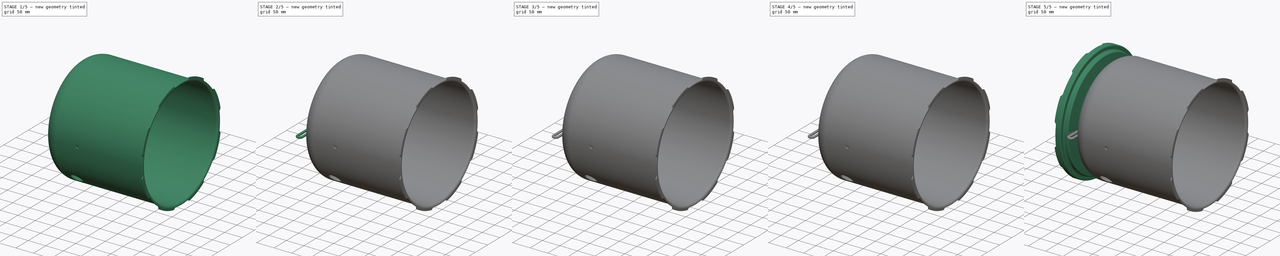
[diagram: build sequence overview — one tinted view per stage of 5, left to right]
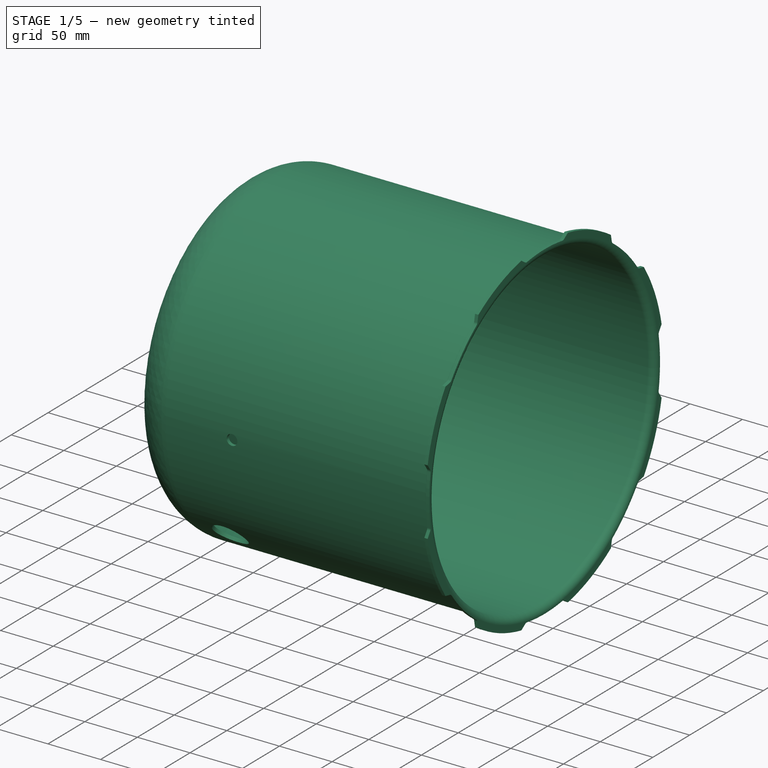
[diagram: stage 1 of 5 — iso view after this stage's code; geometry added in this stage tinted green]
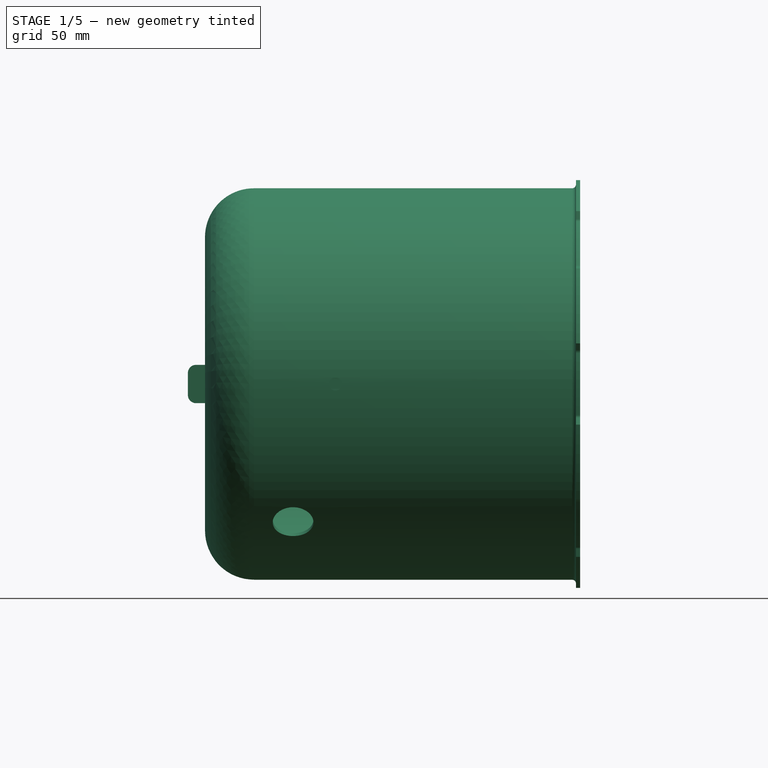
[diagram: stage 1 of 5 — front view after this stage's code; geometry added in this stage tinted green]
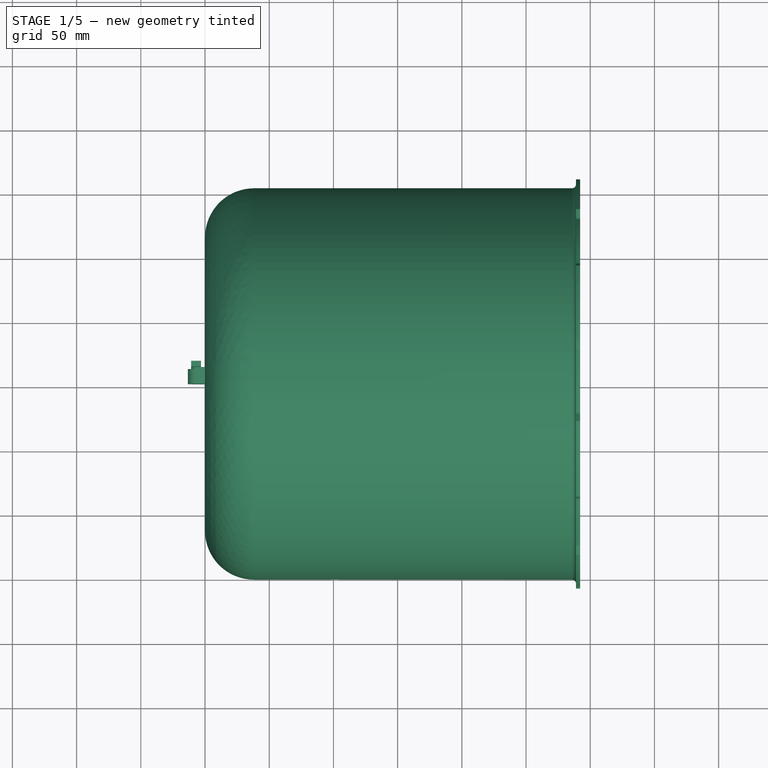
[diagram: stage 1 of 5 — top view after this stage's code; geometry added in this stage tinted green]
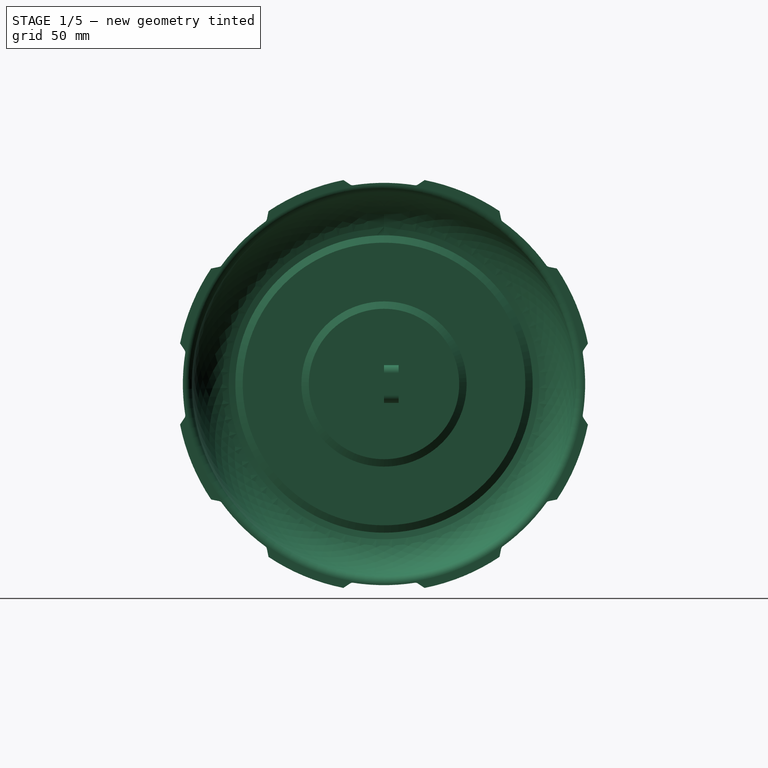
[diagram: stage 1 of 5 — right view after this stage's code; geometry added in this stage tinted green]
FCSTD DOCUMENT  (FreeCAD 0.20RUnknown)
Label: boiler-assy
License: All rights reserved
LicenseURL: http://en.wikipedia.org/wiki/All_rights_reserved
objects: Sketcher::SketchObject×46, PartDesign::Pad×23, PartDesign::Body×17, PartDesign::Pocket×11, PartDesign::Fillet×9, PartDesign::Revolution×3, PartDesign::PolarPattern×3, PartDesign::AdditiveHelix×3, PartDesign::Groove×3, App::Part×3, PartDesign::AdditivePipe×2, PartDesign::Plane×2, PartDesign::Line×1, PartDesign::AdditiveSphere×1, PartDesign::Chamfer×1
note: 181 computed .brp shape members not serialized (recipe doc carries the construction recipe); baked Part::Feature solids carry a one-line shape summary decoded from their .brp

FEATURE [Sketcher::SketchObject] Sketch003
  FullyConstrained = true
  MapMode = 5
  Placement = pos=(0,0,0) rot=(1,0,0;1.5708rad)
  Support = -> [XZ_Plane001]
  sketch-geometry (22):
    g0: ArcOfCircle CenterX=38.1 CenterY=114.3 CenterZ=0 NormalX=0 NormalY=0 NormalZ=1 AngleXU=0 Radius=38.1 StartAngle=1.5708 EndAngle=3.14159
    g1: LineSegment StartX=38.1 StartY=152.4 StartZ=0 EndX=285.75 EndY=152.4 EndZ=0
    g2: ArcOfCircle CenterX=285.75 CenterY=155.575 CenterZ=0 NormalX=0 NormalY=0 NormalZ=1 AngleXU=0 Radius=3.175 StartAngle=4.71239 EndAngle=6.28319
    g3: LineSegment StartX=288.925 StartY=155.575 StartZ=0 EndX=288.925 EndY=161.925 EndZ=0
    g4: LineSegment StartX=288.925 StartY=161.925 StartZ=0 EndX=292.1 EndY=161.925 EndZ=0
    g5: LineSegment StartX=292.1 StartY=161.925 StartZ=0 EndX=292.1 EndY=155.575 EndZ=0
    g6: ArcOfCircle CenterX=285.75 CenterY=155.575 CenterZ=0 NormalX=0 NormalY=0 NormalZ=1 AngleXU=0 Radius=6.35 StartAngle=4.71239 EndAngle=6.28319
    g7: LineSegment StartX=285.75 StartY=149.225 StartZ=0 EndX=38.1 EndY=149.225 EndZ=0
    g8: ArcOfCircle CenterX=38.1 CenterY=114.3 CenterZ=0 NormalX=0 NormalY=0 NormalZ=1 AngleXU=0 Radius=34.925 StartAngle=1.5708 EndAngle=3.09876
    g9: LineSegment StartX=3.20703 StartY=115.795 StartZ=0 EndX=5.89066 EndY=110.04 EndZ=0
    g10: LineSegment StartX=0 StartY=114.3 StartZ=0 EndX=2.68363 EndY=108.545 EndZ=0
    g11: LineSegment StartX=5.89066 StartY=110.04 StartZ=0 EndX=5.89066 EndY=64.3204 EndZ=0
    g12: LineSegment StartX=5.89066 StartY=64.3204 StartZ=0 EndX=8.57428 EndY=58.5654 EndZ=0
    g13: LineSegment StartX=8.57428 StartY=58.5654 StartZ=0 EndX=8.57428 EndY=0 EndZ=0
    g14: LineSegment StartX=2.68363 StartY=108.545 StartZ=0 EndX=2.68363 EndY=62.8249 EndZ=0
    g15: LineSegment StartX=2.68363 StartY=62.8249 StartZ=0 EndX=5.36725 EndY=57.0699 EndZ=0
    g16: LineSegment StartX=5.36725 StartY=57.0699 StartZ=0 EndX=5.36725 EndY=0 EndZ=0
    g17: LineSegment StartX=5.36725 StartY=0 StartZ=0 EndX=8.57428 EndY=0 EndZ=0
    g18: LineSegment StartX=2.68363 StartY=108.545 StartZ=0 EndX=5.89066 EndY=110.04 EndZ=0
    g19: LineSegment StartX=0 StartY=114.3 StartZ=0 EndX=3.20703 EndY=115.795 EndZ=0
    g20: LineSegment StartX=5.36725 StartY=57.0699 StartZ=0 EndX=8.57428 EndY=58.5654 EndZ=0
    g21: LineSegment StartX=2.68363 StartY=62.8249 StartZ=0 EndX=5.89066 EndY=64.3204 EndZ=0
  constraints (58):
    c: Horizontal(g1)
    c: Tangent(g1,g0) = 1.5708
    c: Radius(g0) = 38.1
    c: Vertical(g3)
    c: Tangent(g3,g2) = -1.5708
    c: Tangent(g2,g1) = -1.5708
    c: Coincident(g4,g3)
    c: Horizontal(g4)
    c: Coincident(g5,g4)
    c: Vertical(g5)
    c: DistanceY(g3,g3) = 6.35
    c: DistanceX(g4,g4) = 3.175
    c: Coincident(g6,g2)
    c: Tangent(g6,g5) = 1.5708
    c: Horizontal(g7)
    c: Tangent(g7,g6) = 1.5708
    c: Equal(g1,g7)
    c: Coincident(g8,g0)
    c: Coincident(g8,g7)
    c: Distance(g-1,g1) = 152.4
    c: DistanceY(g6,g5) = 6.35
    c: Coincident(g9,g8)
    c: Coincident(g10,g0)
    c: Coincident(g11,g9)
    c: Vertical(g11)
    c: Coincident(g12,g11)
    c: Coincident(g13,g12)
    c: Vertical(g13)
    c: PointOnObject(g13,g-1)
    c: Parallel(g10,g9)
    c: Parallel(g10,g12)
    c: Coincident(g14,g10)
    c: Vertical(g14)
    c: Coincident(g15,g14)
    c: Coincident(g16,g15)
    c: PointOnObject(g16,g-1)
    c: Vertical(g16)
    c: Coincident(g17,g16)
    c: Coincident(g17,g13)
    c: Parallel(g12,g15)
    c: Coincident(g18,g10)
    c: Coincident(g18,g9)
    c: Coincident(g19,g0)
    c: Coincident(g19,g8)
    c: Coincident(g20,g15)
    c: Coincident(g20,g12)
    c: Coincident(g21,g14)
    c: Coincident(g21,g11)
    c: Perpendicular(g19,g10)
    c: Perpendicular(g18,g10)
    c: Perpendicular(g21,g15)
    c: Perpendicular(g20,g15)
    c: Angle(g-2,g15) = 0.436332
    c: Tangent(g0,g-2) = 1.5708
    c: Distance(g10) = 6.35
    c: DistanceY(g14,g14) = 45.72
    c: Equal(g15,g10)
    c: DistanceX(g-1,g4) = 292.1
FEATURE [PartDesign::Revolution] Revolution
  Angle = 360
  Axis = (1,0,0)
  Base = (0,0,0)
  Placement = pos=(0,0,0) rot=(1,0,0;1.5708rad)
  Profile = -> Sketch003
  ReferenceAxis = -> Sketch003 [H_Axis]
FEATURE [PartDesign::Body] Body010  label="element"
  Group = -> [Sketch063,Sketch064,AdditivePipe001]
  Origin = -> Origin026
  Placement = pos=(17.78,152.4,0) rot=(0,0,1;0rad)
  Tip = -> AdditivePipe001
FEATURE [Sketcher::SketchObject] Sketch066
  FullyConstrained = true
  MapMode = 5
  Placement = pos=(0,0,0) rot=(1,0,0;1.5708rad)
  Support = -> [XZ_Plane027]
  sketch-geometry (12):
    g0: ArcOfCircle CenterX=-6.985 CenterY=8.5725 CenterZ=0 NormalX=0 NormalY=0 NormalZ=1 AngleXU=0 Radius=6.35 StartAngle=1.5708 EndAngle=3.14159
    g1: LineSegment StartX=-6.985 StartY=14.9225 StartZ=0 EndX=6.985 EndY=14.9225 EndZ=0
    g2: ArcOfCircle CenterX=6.985 CenterY=8.5725 CenterZ=0 NormalX=0 NormalY=0 NormalZ=1 AngleXU=0 Radius=6.35 StartAngle=3e-16 EndAngle=1.5708
    g3: LineSegment StartX=13.335 StartY=8.5725 StartZ=0 EndX=13.335 EndY=-8.5725 EndZ=0
    g4: ArcOfCircle CenterX=6.985 CenterY=-8.5725 CenterZ=0 NormalX=0 NormalY=0 NormalZ=1 AngleXU=0 Radius=6.35 StartAngle=4.71239 EndAngle=6.28319
    g5: LineSegment StartX=6.985 StartY=-14.9225 StartZ=0 EndX=-6.985 EndY=-14.9225 EndZ=0
    g6: ArcOfCircle CenterX=-6.985 CenterY=-8.5725 CenterZ=0 NormalX=0 NormalY=0 NormalZ=1 AngleXU=0 Radius=6.35 StartAngle=3.14159 EndAngle=4.71239
    g7: LineSegment StartX=-13.335 StartY=-8.5725 StartZ=0 EndX=-13.335 EndY=8.5725 EndZ=0
    g8: GeomPoint X=-13.335 Y=14.9225 Z=0
    g9: GeomPoint X=13.335 Y=-14.9225 Z=0
    g10: LineSegment StartX=-6.985 StartY=8.5725 StartZ=0 EndX=6.985 EndY=-8.5725 EndZ=0
    g11: LineSegment StartX=-6.985 StartY=-8.5725 StartZ=0 EndX=6.985 EndY=8.5725 EndZ=0
  constraints (28):
    c: Tangent(g0,g1) = 1.5708
    c: Tangent(g1,g2) = 1.5708
    c: Tangent(g2,g3) = 1.5708
    c: Tangent(g3,g4) = 1.5708
    c: Tangent(g4,g5) = 1.5708
    c: Tangent(g5,g6) = 1.5708
    c: Tangent(g6,g7) = 1.5708
    c: Tangent(g7,g0) = 1.5708
    c: Horizontal(g1)
    c: Horizontal(g5)
    c: Vertical(g3)
    c: Vertical(g7)
    c: Equal(g0,g2)
    c: Equal(g2,g4)
    c: Equal(g4,g6)
    c: PointOnObject(g8,g1)
    c: PointOnObject(g8,g7)
    c: PointOnObject(g9,g3)
    c: PointOnObject(g9,g5)
    c: Coincident(g10,g0)
    c: Coincident(g10,g4)
    c: Coincident(g11,g6)
    c: Coincident(g11,g2)
    c: PointOnObject(g-1,g10)
    c: PointOnObject(g-1,g11)
    c: Radius(g0) = 6.35
    c: Distance(g6,g3) = 26.67
    c: Distance(g4,g1) = 29.845
FEATURE [PartDesign::Pad] Pad014
  Direction = (0,-1,2e-16)
  Length = 11.43
  Length2 = 10
  Placement = pos=(0,0,0) rot=(1,0,0;1.5708rad)
  Profile = -> Sketch066
  ReferenceAxis = -> Sketch066 [N_Axis]
  Reversed = true
  Type = 0
FEATURE [PartDesign::Body] Body011  label="connector"
  Group = -> [Sketch066,Pad014,Sketch067,Pad015,Sketch068,Pad016,Sketch074,Pocket012]
  Origin = -> Origin027
  Placement = pos=(17.78,159.385,0) rot=(0,0,1;0rad)
  Tip = -> Pocket012
FEATURE [Sketcher::SketchObject] Sketch075
  AttachmentOffset = pos=(0,0,-11.43) rot=(0,0,1;0rad)
  FullyConstrained = true
  MapMode = 5
  Placement = pos=(0,11.43,2.5e-15) rot=(1,0,0;1.5708rad)
  Support = -> [XZ_Plane028]
  sketch-geometry (10):
    g0: ArcOfCircle CenterX=-6.858 CenterY=8.9535 CenterZ=0 NormalX=0 NormalY=0 NormalZ=1 AngleXU=0 Radius=3.937 StartAngle=1.5708 EndAngle=3.14159
    g1: LineSegment StartX=-6.858 StartY=12.8905 StartZ=0 EndX=0.889 EndY=12.8905 EndZ=0
    g2: LineSegment StartX=0.889 StartY=12.8905 StartZ=0 EndX=0.889 EndY=9.0805 EndZ=0
    g3: LineSegment StartX=0.889 StartY=9.0805 StartZ=0 EndX=-1.905 EndY=9.0805 EndZ=0
    g4: LineSegment StartX=-1.905 StartY=9.0805 StartZ=0 EndX=-1.905 EndY=4.1275 EndZ=0
    g5: LineSegment StartX=-3.175 StartY=2.8575 StartZ=0 EndX=-3.175 EndY=0.8255 EndZ=0
    g6: LineSegment StartX=-3.175 StartY=0.8255 StartZ=0 EndX=-10.795 EndY=0.8255 EndZ=0
    g7: LineSegment StartX=-10.795 StartY=0.8255 StartZ=0 EndX=-10.795 EndY=8.9535 EndZ=0
    g8: ArcOfCircle CenterX=-1.905 CenterY=2.8575 CenterZ=0 NormalX=0 NormalY=0 NormalZ=1 AngleXU=0 Radius=1.27 StartAngle=1.5708 EndAngle=3.14159
    g9: Circle CenterX=-6.858 CenterY=8.9535 CenterZ=0 NormalX=0 NormalY=0 NormalZ=1 AngleXU=0 Radius=2.2225
  constraints (28):
    c: Horizontal(g1)
    c: Coincident(g2,g1)
    c: Vertical(g2)
    c: Coincident(g3,g2)
    c: Horizontal(g3)
    c: Coincident(g4,g3)
    c: Vertical(g4)
    c: Vertical(g5)
    c: Coincident(g6,g5)
    c: Horizontal(g6)
    c: Coincident(g7,g6)
    c: Vertical(g7)
    c: Tangent(g7,g0) = 1.5708
    c: DistanceX(g0,g3) = 8.89
    c: Tangent(g1,g0) = 1.5708
    c: DistanceY(g5,g5) = 2.032
    c: Coincident(g8,g4)
    c: Tangent(g8,g5) = -1.5708
    c: Radius(g8) = 1.27
    c: Perpendicular(g8,g4)
    c: DistanceY(g5,g1) = 12.065
    c: Radius(g0) = 3.937
    c: DistanceY(g2,g2) = 3.81
    c: DistanceX(g4,g-1) = 1.905
    c: DistanceY(g-1,g5) = 0.8255
    c: Coincident(g9,g0)
    c: Diameter(g9) = 4.445
    c: DistanceX(g-1,g1) = 0.889
FEATURE [PartDesign::Pad] Pad022
  Direction = (0,-1,-2e-16)
  Length = 1.5875
  Length2 = 10
  Placement = pos=(0,0,0) rot=(1,0,0;1.5708rad)
  Profile = -> Sketch075
  ReferenceAxis = -> Sketch075 [N_Axis]
  Reversed = true
  Type = 0
FEATURE [Sketcher::SketchObject] Sketch076
  ExternalGeometry = -> [Pad022]
  FullyConstrained = true
  MapMode = 5
  Placement = pos=(3e-16,13.0175,3.4e-15) rot=(-1,0,0;1.5708rad)
  Support = -> [Pad022]
  sketch-geometry (4):
    g0: LineSegment StartX=-10.795 StartY=-0.8255 StartZ=0 EndX=-3.175 EndY=-0.8255 EndZ=0
    g1: LineSegment StartX=-3.175 StartY=-0.8255 StartZ=0 EndX=-3.175 EndY=-2.4765 EndZ=0
    g2: LineSegment StartX=-3.175 StartY=-2.4765 StartZ=0 EndX=-10.795 EndY=-2.4765 EndZ=0
    g3: LineSegment StartX=-10.795 StartY=-2.4765 StartZ=0 EndX=-10.795 EndY=-0.8255 EndZ=0
  constraints (11):
    c: Coincident(g0,g1)
    c: Coincident(g1,g2)
    c: Coincident(g2,g3)
    c: Coincident(g3,g0)
    c: Horizontal(g0)
    c: Horizontal(g2)
    c: Vertical(g1)
    c: Vertical(g3)
    c: Coincident(g0,g-4)
    c: PointOnObject(g1,g-11)
    c: DistanceY(g2,g0) = 1.651
FEATURE [PartDesign::Pad] Pad023
  BaseFeature = -> Pad022
  Direction = (0,1,2e-16)
  Length = 5.08
  Length2 = 10
  Placement = pos=(0,0,0) rot=(1,0,0;1.5708rad)
  Profile = -> Sketch076
  ReferenceAxis = -> Sketch076 [N_Axis]
  Type = 0
FEATURE [Sketcher::SketchObject] Sketch077
  ExternalGeometry = -> [Pad022]
  FullyConstrained = true
  MapMode = 5
  Placement = pos=(2e-16,11.43,3e-15) rot=(1,0,0;1.5708rad)
  Support = -> [Pad022]
  sketch-geometry (4):
    g0: LineSegment StartX=0.889 StartY=12.8905 StartZ=0 EndX=-0.762 EndY=12.8905 EndZ=0
    g1: LineSegment StartX=-0.762 StartY=12.8905 StartZ=0 EndX=-0.762 EndY=9.0805 EndZ=0
    g2: LineSegment StartX=-0.762 StartY=9.0805 StartZ=0 EndX=0.889 EndY=9.0805 EndZ=0
    g3: LineSegment StartX=0.889 StartY=9.0805 StartZ=0 EndX=0.889 EndY=12.8905 EndZ=0
  constraints (11):
    c: Coincident(g0,g1)
    c: Coincident(g1,g2)
    c: Coincident(g2,g3)
    c: Coincident(g3,g0)
    c: Horizontal(g0)
    c: Horizontal(g2)
    c: Vertical(g1)
    c: Vertical(g3)
    c: Coincident(g0,g-4)
    c: PointOnObject(g1,g-11)
    c: DistanceX(g2,g2) = 1.651
FEATURE [PartDesign::Pad] Pad024
  BaseFeature = -> Pad023
  Direction = (0,-1,-2e-16)
  Length = 3.175
  Length2 = 10
  Placement = pos=(0,0,0) rot=(1,0,0;1.5708rad)
  Profile = -> Sketch077
  ReferenceAxis = -> Sketch077 [N_Axis]
  Type = 0
FEATURE [PartDesign::Fillet] Fillet008
  Base = -> Pad024 [Edge16,Edge23,Edge12,Edge19]
  BaseFeature = -> Pad024
  Placement = pos=(0,0,0) rot=(1,0,0;1.5708rad)
  Radius = 1.27
  SupportTransform = false
  UseAllEdges = false
FEATURE [PartDesign::Body] Body015  label="contact-b"
  Group = -> [Sketch075,Pad022,Sketch076,Sketch077,Pad023,Pad024,Fillet008]
  Origin = -> Origin031
  Placement = pos=(17.78,159.385,0) rot=(0,1,0;3.14159rad)
  Tip = -> Fillet008
FEATURE [Sketcher::SketchObject] Sketch078
  FullyConstrained = true
  MapMode = 5
  Placement = pos=(0,0,0) rot=(1,0,0;1.5708rad)
  Support = -> [XZ_Plane032]
  sketch-geometry (3):
    g0: LineSegment StartX=6.35 StartY=0 StartZ=0 EndX=-6.35 EndY=0 EndZ=0
    g1: Circle CenterX=-6.35 CenterY=0 CenterZ=0 NormalX=0 NormalY=0 NormalZ=1 AngleXU=0 Radius=1.27
    g2: Circle CenterX=6.35 CenterY=0 CenterZ=0 NormalX=0 NormalY=0 NormalZ=1 AngleXU=0 Radius=1.27
  constraints (7):
    c: Horizontal(g0)
    c: Coincident(g1,g0)
    c: Coincident(g2,g0)
    c: Equal(g2,g1)
    c: Diameter(g2) = 2.54
    c: Symmetric(g0,g0,g-1)
    c: DistanceX(g0,g0) = 12.7
FEATURE [PartDesign::Pad] Pad025
  Direction = (0,-1,-2e-16)
  Length = 12.7
  Length2 = 10
  Placement = pos=(0,0,0) rot=(1,0,0;1.5708rad)
  Profile = -> Sketch078
  ReferenceAxis = -> Sketch078 [N_Axis]
  Reversed = true
  Type = 0
FEATURE [PartDesign::Body] Body016  label="contact-element-core"
  Group = -> [Sketch078,Pad025]
  Origin = -> Origin032
  Placement = pos=(17.78,165.608,0) rot=(0,0,1;0rad)
  Tip = -> Pad025
FEATURE [Sketcher::SketchObject] Sketch079
  FullyConstrained = true
  MapMode = 5
  Placement = pos=(0,0,0) rot=(1,0,0;1.5708rad)
  Support = -> [XZ_Plane032]
  sketch-geometry (3):
    g0: LineSegment StartX=6.35 StartY=0 StartZ=0 EndX=-6.35 EndY=0 EndZ=0
    g1: Circle CenterX=-6.35 CenterY=0 CenterZ=0 NormalX=0 NormalY=0 NormalZ=1 AngleXU=0 Radius=1.27
    g2: Circle CenterX=6.35 CenterY=0 CenterZ=0 NormalX=0 NormalY=0 NormalZ=1 AngleXU=0 Radius=1.27
  constraints (7):
    c: Horizontal(g0)
    c: Coincident(g1,g0)
    c: Coincident(g2,g0)
    c: Equal(g2,g1)
    c: Diameter(g2) = 2.54
    c: Symmetric(g0,g0,g-1)
    c: DistanceX(g0,g0) = 12.7
FEATURE [PartDesign::Pad] Pad026
  Direction = (0,-1,-2e-16)
  Length = 12.7
  Length2 = 10
  Placement = pos=(0,0,0) rot=(1,0,0;1.5708rad)
  Profile = -> Sketch079
  ReferenceAxis = -> Sketch079 [N_Axis]
  Reversed = true
  Type = 0
FEATURE [PartDesign::Body] Body017  label="contact-element-core2"
  Group = -> [Sketch079,Pad026]
  Origin = -> Origin033
  Placement = pos=(17.78,165.608,0) rot=(0,1,0;3.14159rad)
  Tip = -> Pad026
FEATURE [App::Part] Part002  label="boiler-element"
  Group = -> [Body009,Body010,Body011,Body012,Body014,Body015,Body016,Body017]
  Origin = -> Origin024
  Placement = pos=(0,0,0) rot=(1,0,0;-2.35619rad)
FEATURE [PartDesign::Pocket] Pocket
  BaseFeature = -> Revolution
  Direction = (0,1,2e-16)
  Length = 5
  Length2 = 5
  Placement = pos=(0,0,0) rot=(1,0,0;1.5708rad)
  Profile = -> Sketch052
  ReferenceAxis = -> Sketch052 [N_Axis]
  Reversed = true
  Type = 1
FEATURE [PartDesign::Pocket] Pocket013
  BaseFeature = -> Pocket
  Direction = (-1,2e-16,-3e-16)
  Length = 5
  Length2 = 5
  Midplane = true
  Placement = pos=(0,0,0) rot=(1,0,0;1.5708rad)
  Profile = -> Sketch004
  ReferenceAxis = -> Sketch004 [N_Axis]
  Type = 1
FEATURE [PartDesign::PolarPattern] PolarPattern
  Angle = 360
  Axis = -> X_Axis001
  BaseFeature = -> Pocket013
  Occurrences = 8
  Originals = -> [Pocket013]
  Placement = pos=(0,0,0) rot=(1,0,0;1.5708rad)
FEATURE [PartDesign::Plane] DatumPlane
  AttachmentOffset = pos=(0,0,0) rot=(1,0,0;0.785398rad)
  Length = 392.582
  MapMode = 5
  Placement = pos=(0,0,0) rot=(1,0,0;2.35619rad)
  ResizeMode = 0
  Support = -> [XZ_Plane001]
  Width = 524.675
FEATURE [Sketcher::SketchObject] Sketch080
  FullyConstrained = true
  MapMode = 5
  Placement = pos=(0,0,0) rot=(1,0,0;2.35619rad)
  Support = -> [DatumPlane]
  sketch-geometry (1):
    g0: Circle CenterX=68.58 CenterY=0 CenterZ=0 NormalX=0 NormalY=0 NormalZ=1 AngleXU=0 Radius=15.875
  constraints (3):
    c: PointOnObject(g0,g-1)
    c: Diameter(g0) = 31.75
    c: DistanceX(g-1,g0) = 68.58
FEATURE [PartDesign::Pocket] Pocket014
  BaseFeature = -> PolarPattern
  Direction = (0,0.707107,0.707107)
  Length = 5
  Length2 = 5
  Placement = pos=(0,0,0) rot=(1,0,0;1.5708rad)
  Profile = -> Sketch080
  ReferenceAxis = -> Sketch080 [N_Axis]
  Reversed = true
  Type = 1
FEATURE [PartDesign::Plane] DatumPlane001  label="water-level"
  AttachmentOffset = pos=(0,0,171.45) rot=(0,0,1;0rad)
  Length = 381.153
  MapMode = 5
  Placement = pos=(171.45,-3.81e-14,3.81e-14) rot=(0.57735,0.57735,0.57735;2.0944rad)
  ResizeMode = 0
  Support = -> [YZ_Plane001]
  Width = 381.153
FEATURE [PartDesign::Body] Body001  label="cylinder"
  Group = -> [Sketch003,Revolution,Sketch004,Sketch052,Pocket,Pocket013,PolarPattern,DatumPlane,Sketch080,Pocket014,DatumPlane001]
  Origin = -> Origin001
  Tip = -> Pocket014
FEATURE [App::Part] Part001  label="boiler"
  Group = -> [Body001,Body002]
  Origin = -> Origin016
  Placement = pos=(-50.8,0,0) rot=(0,0,1;0rad)
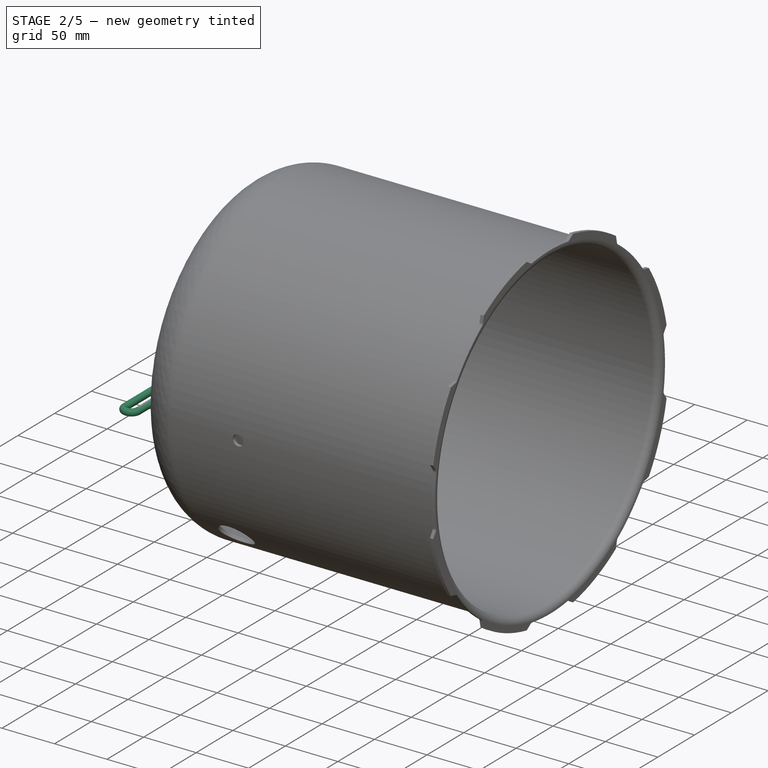
[diagram: stage 2 of 5 — iso view after this stage's code; geometry added in this stage tinted green]
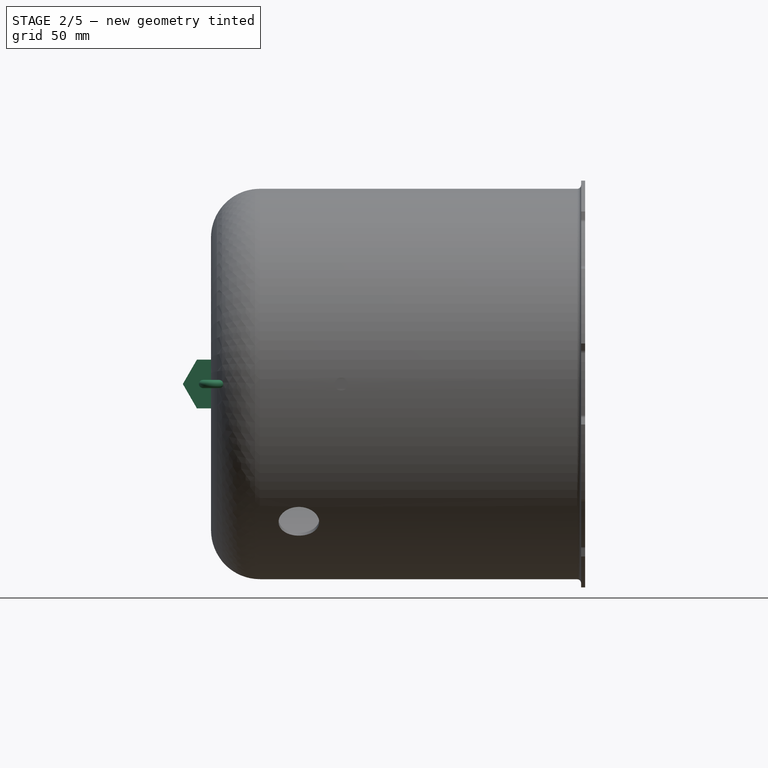
[diagram: stage 2 of 5 — front view after this stage's code; geometry added in this stage tinted green]
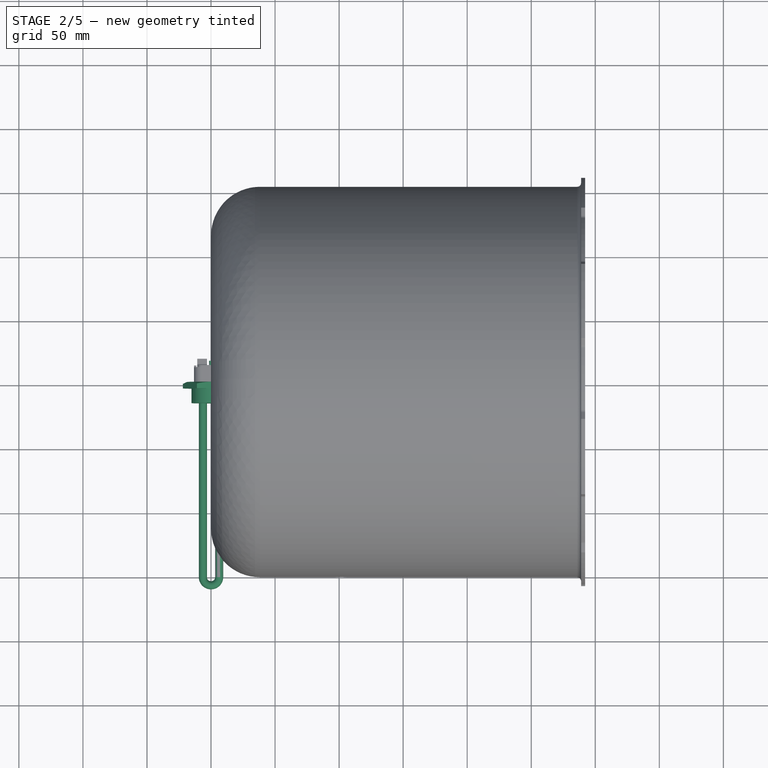
[diagram: stage 2 of 5 — top view after this stage's code; geometry added in this stage tinted green]
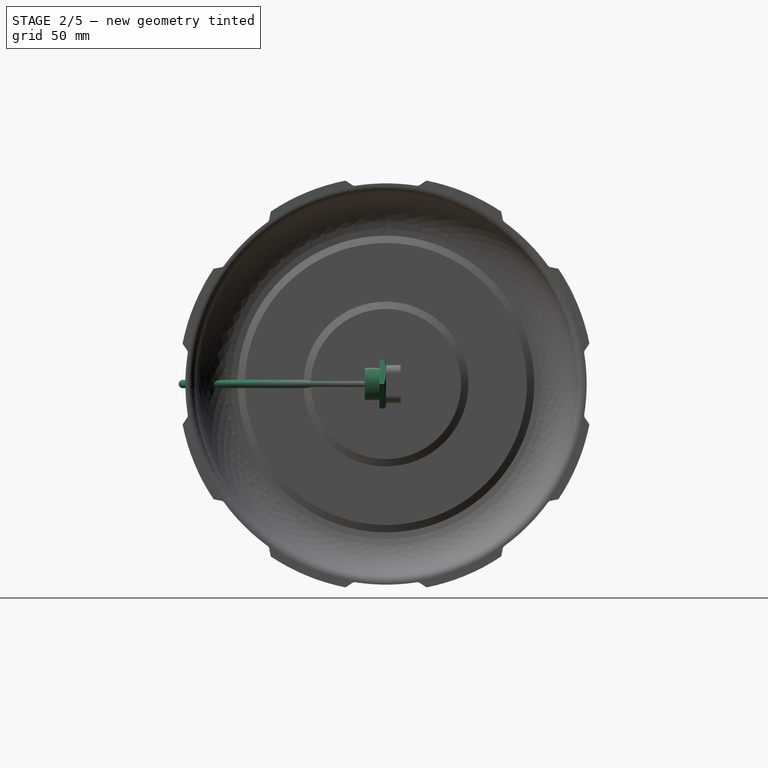
[diagram: stage 2 of 5 — right view after this stage's code; geometry added in this stage tinted green]
FEATURE [PartDesign::Body] Body  label="mount"
  Group = -> [Sketch,Sketch035,AdditivePipe,Sketch036,Pad,Sketch037,Pad004,Sketch038,Pad005,Sketch039,AdditiveHelix,DatumLine,AdditiveHelix001,Sketch040,Groove,Sketch041,Pocket003,Sketch042,Pocket004,Fillet006,Chamfer]
  Origin = -> Origin
  Tip = -> Chamfer
FEATURE [App::Part] Part  label="float-switch"
  Group = -> [Body,Body003,Body004,Body005,Body006,Body007,Body008]
  Origin = -> Origin017
  Placement = pos=(127,-102.235,0) rot=(-0.707107,0.707107,0;3.14159rad)
FEATURE [Sketcher::SketchObject] Sketch058
  FullyConstrained = true
  MapMode = 5
  Placement = pos=(0,0,0) rot=(1,0,0;1.5708rad)
  Support = -> [XZ_Plane025]
  sketch-geometry (7):
    g0: LineSegment StartX=21.997 StartY=0 StartZ=0 EndX=10.9985 EndY=19.05 EndZ=0
    g1: LineSegment StartX=10.9985 StartY=19.05 StartZ=0 EndX=-10.9985 EndY=19.05 EndZ=0
    g2: LineSegment StartX=-10.9985 StartY=19.05 StartZ=0 EndX=-21.997 EndY=0 EndZ=0
    g3: LineSegment StartX=-21.997 StartY=0 StartZ=0 EndX=-10.9985 EndY=-19.05 EndZ=0
    g4: LineSegment StartX=-10.9985 StartY=-19.05 StartZ=0 EndX=10.9985 EndY=-19.05 EndZ=0
    g5: LineSegment StartX=10.9985 StartY=-19.05 StartZ=0 EndX=21.997 EndY=0 EndZ=0
    g6: Circle CenterX=0 CenterY=0 CenterZ=0 NormalX=0 NormalY=0 NormalZ=1 AngleXU=0 Radius=21.997
  constraints (16):
    c: Coincident(g0,g1)
    c: Coincident(g1,g2)
    c: Coincident(g2,g3)
    c: Coincident(g3,g4)
    c: Coincident(g4,g5)
    c: Coincident(g5,g0)
    c: Equal(g0, g1-g5) x5
    c: PointOnObject(g0,g6)
    c: PointOnObject(g1,g6)
    c: PointOnObject(g2,g6)
    c: PointOnObject(g3,g6)
    c: PointOnObject(g4,g6)
    c: PointOnObject(g5,g6)
    c: Coincident(g6,g-1)
    c: PointOnObject(g5,g-1)
    c: Distance(g4,g1) = 38.1
FEATURE [PartDesign::Pad] Pad012
  Direction = (0,-1,2e-16)
  Length = 5.08
  Length2 = 10
  Placement = pos=(0,0,0) rot=(1,0,0;1.5708rad)
  Profile = -> Sketch058
  ReferenceAxis = -> Sketch058 [N_Axis]
  Type = 0
FEATURE [Sketcher::SketchObject] Sketch059
  FullyConstrained = true
  MapMode = 5
  Placement = pos=(0,-5.08,1.1e-15) rot=(1,0,0;1.5708rad)
  Support = -> [Pad012]
  sketch-geometry (1):
    g0: Circle CenterX=0 CenterY=0 CenterZ=0 NormalX=0 NormalY=0 NormalZ=1 AngleXU=0 Radius=15.24
  constraints (2):
    c: Coincident(g0,g-1)
    c: Diameter(g0) = 30.48
FEATURE [PartDesign::Pad] Pad013
  BaseFeature = -> Pad012
  Direction = (0,-1,2e-16)
  Length = 11.43
  Length2 = 10
  Placement = pos=(0,0,0) rot=(1,0,0;1.5708rad)
  Profile = -> Sketch059
  ReferenceAxis = -> Sketch059 [N_Axis]
  Type = 0
FEATURE [Sketcher::SketchObject] Sketch062
  FullyConstrained = true
  MapMode = 5
  Placement = pos=(0,0,0) rot=(0.57735,0.57735,0.57735;2.0944rad)
  Support = -> [YZ_Plane025]
  sketch-geometry (4):
    g0: LineSegment StartX=-3.87417 StartY=27.4975 StartZ=0 EndX=3.87417 EndY=10.0945 EndZ=0
    g1: GeomPoint X=0 Y=18.796 Z=0
    g2: LineSegment StartX=-3.87417 StartY=27.4975 StartZ=0 EndX=15.0715 EndY=25.5063 EndZ=0
    g3: LineSegment StartX=15.0715 StartY=25.5063 StartZ=0 EndX=3.87417 EndY=10.0945 EndZ=0
  constraints (10):
    c: Symmetric(g0,g0,g1)
    c: PointOnObject(g1,g-2)
    c: Coincident(g2,g0)
    c: Coincident(g3,g2)
    c: Coincident(g3,g0)
    c: Equal(g3,g2)
    c: Equal(g2,g0)
    c: Angle(g0,g-1) = 1.15192
    c: Distance(g0) = 19.05
    c: DistanceY(g-1,g1) = 18.796
FEATURE [Sketcher::SketchObject] Sketch063  label="element-profile"
  FullyConstrained = true
  MapMode = 5
  Placement = pos=(0,0,0) rot=(1,0,0;1.5708rad)
  Support = -> [XZ_Plane026]
  sketch-geometry (1):
    g0: Circle CenterX=6.35 CenterY=0 CenterZ=0 NormalX=0 NormalY=0 NormalZ=1 AngleXU=0 Radius=3.175
  constraints (3):
    c: PointOnObject(g0,g-1)
    c: DistanceX(g-1,g0) = 6.35
    c: Diameter(g0) = 6.35
FEATURE [Sketcher::SketchObject] Sketch064  label="element-path"
  FullyConstrained = true
  MapMode = 5
  Support = -> [XY_Plane026]
  sketch-geometry (3):
    g0: LineSegment StartX=6.35 StartY=0 StartZ=0 EndX=6.35 EndY=-152.4 EndZ=0
    g1: ArcOfCircle CenterX=4e-16 CenterY=-152.4 CenterZ=0 NormalX=0 NormalY=0 NormalZ=1 AngleXU=0 Radius=6.35 StartAngle=3.14159 EndAngle=6.28319
    g2: LineSegment StartX=-6.35 StartY=-152.4 StartZ=0 EndX=-6.35 EndY=0 EndZ=0
  constraints (9):
    c: PointOnObject(g0,g-1)
    c: Vertical(g0)
    c: DistanceX(g-1,g0) = 6.35
    c: DistanceY(g0,g0) = 152.4
    c: Tangent(g1,g0) = 1.5708
    c: PointOnObject(g2,g-1)
    c: Vertical(g2)
    c: Tangent(g2,g1) = 1.5708
    c: DistanceX(g2,g-1) = 6.35
FEATURE [PartDesign::Groove] Groove002
  Angle = 360
  Axis = (3e-16,1,-2e-16)
  Base = (0,0,0)
  BaseFeature = -> Pad013
  Placement = pos=(0,0,0) rot=(1,0,0;1.5708rad)
  Profile = -> Sketch062
  ReferenceAxis = -> Sketch062 [H_Axis]
  Reversed = true
FEATURE [PartDesign::Body] Body009  label="fitting"
  Group = -> [Sketch058,Pad012,Sketch059,Pad013,Sketch062,Groove002,Sketch065,Pocket010]
  Origin = -> Origin025
  Placement = pos=(17.78,159.385,0) rot=(0,0,1;0rad)
  Tip = -> Pocket010
FEATURE [PartDesign::AdditivePipe] AdditivePipe001
  AuxilleryCurvelinear = true
  AuxillerySpineTangent = false
  Binormal = (0,0,0)
  Mode = 0
  Placement = pos=(0,0,0) rot=(1,0,0;1.5708rad)
  Profile = -> Sketch063
  Spine = -> Sketch064
  SpineTangent = false
  Transformation = 0
  Transition = 0
FEATURE [Sketcher::SketchObject] Sketch067
  ExternalGeometry = -> [Pad014]
  FullyConstrained = true
  MapMode = 5
  Placement = pos=(0,11.43,-2.5e-15) rot=(-1,0,0;1.5708rad)
  Support = -> [Pad014]
  sketch-geometry (10):
    g0: LineSegment StartX=-11.43 StartY=-8.5725 StartZ=0 EndX=-11.43 EndY=8.5725 EndZ=0
    g1: LineSegment StartX=-11.43 StartY=8.5725 StartZ=0 EndX=-13.335 EndY=8.5725 EndZ=0
    g2: LineSegment StartX=-13.335 StartY=8.5725 StartZ=0 EndX=-13.335 EndY=-8.5725 EndZ=0
    g3: LineSegment StartX=-13.335 StartY=-8.5725 StartZ=0 EndX=-11.43 EndY=-8.5725 EndZ=0
    g4: GeomPoint X=-12.3825 Y=0 Z=0
    g5: LineSegment StartX=11.43 StartY=-8.5725 StartZ=0 EndX=11.43 EndY=8.5725 EndZ=0
    g6: LineSegment StartX=11.43 StartY=8.5725 StartZ=0 EndX=13.335 EndY=8.5725 EndZ=0
    g7: LineSegment StartX=13.335 StartY=8.5725 StartZ=0 EndX=13.335 EndY=-8.5725 EndZ=0
    g8: LineSegment StartX=13.335 StartY=-8.5725 StartZ=0 EndX=11.43 EndY=-8.5725 EndZ=0
    g9: GeomPoint X=12.3825 Y=0 Z=0
  constraints (25):
    c: Coincident(g0,g1)
    c: Coincident(g1,g2)
    c: Coincident(g2,g3)
    c: Coincident(g3,g0)
    c: Horizontal(g1)
    c: Horizontal(g3)
    c: Vertical(g0)
    c: Vertical(g2)
    c: Symmetric(g1,g0,g4)
    c: PointOnObject(g4,g-1)
    c: Coincident(g5,g6)
    c: Coincident(g6,g7)
    c: Coincident(g7,g8)
    c: Coincident(g8,g5)
    c: Horizontal(g6)
    c: Horizontal(g8)
    c: Vertical(g5)
    c: Vertical(g7)
    c: Symmetric(g6,g5,g9)
    c: PointOnObject(g9,g-1)
    c: PointOnObject(g6,g-5)
    c: Equal(g5,g0)
    c: Equal(g1,g6)
    c: DistanceX(g1,g1) = 1.905
    c: Coincident(g1,g-9)
FEATURE [PartDesign::Pad] Pad015
  BaseFeature = -> Pad014
  Direction = (0,1,-2e-16)
  Length = 1.27
  Length2 = 10
  Placement = pos=(0,0,0) rot=(1,0,0;1.5708rad)
  Profile = -> Sketch067
  ReferenceAxis = -> Sketch067 [N_Axis]
  Type = 0
FEATURE [Sketcher::SketchObject] Sketch068
  FullyConstrained = true
  MapMode = 5
  Placement = pos=(0,11.43,-2.5e-15) rot=(-1,0,0;1.5708rad)
  Support = -> [Pad015]
  sketch-geometry (12):
    g0: ArcOfCircle CenterX=-0.3175 CenterY=6.6675 CenterZ=0 NormalX=0 NormalY=0 NormalZ=1 AngleXU=0 Radius=1.27 StartAngle=1.5708 EndAngle=3.14159
    g1: LineSegment StartX=-0.3175 StartY=7.9375 StartZ=0 EndX=0.3175 EndY=7.9375 EndZ=0
    g2: ArcOfCircle CenterX=0.3175 CenterY=6.6675 CenterZ=0 NormalX=0 NormalY=0 NormalZ=1 AngleXU=0 Radius=1.27 StartAngle=1e-16 EndAngle=1.5708
    g3: LineSegment StartX=1.5875 StartY=6.6675 StartZ=0 EndX=1.5875 EndY=-6.6675 EndZ=0
    g4: ArcOfCircle CenterX=0.3175 CenterY=-6.6675 CenterZ=0 NormalX=0 NormalY=0 NormalZ=1 AngleXU=0 Radius=1.27 StartAngle=4.71239 EndAngle=6.28319
    g5: LineSegment StartX=0.3175 StartY=-7.9375 StartZ=0 EndX=-0.3175 EndY=-7.9375 EndZ=0
    g6: ArcOfCircle CenterX=-0.3175 CenterY=-6.6675 CenterZ=0 NormalX=0 NormalY=0 NormalZ=1 AngleXU=0 Radius=1.27 StartAngle=3.14159 EndAngle=4.71239
    g7: LineSegment StartX=-1.5875 StartY=-6.6675 StartZ=0 EndX=-1.5875 EndY=6.6675 EndZ=0
    g8: GeomPoint X=-1.5875 Y=7.9375 Z=0
    g9: GeomPoint X=1.5875 Y=-7.9375 Z=0
    g10: LineSegment StartX=-0.3175 StartY=6.6675 StartZ=0 EndX=0.3175 EndY=-6.6675 EndZ=0
    g11: LineSegment StartX=0.3175 StartY=6.6675 StartZ=0 EndX=-0.3175 EndY=-6.6675 EndZ=0
  constraints (28):
    c: Tangent(g0,g1) = 1.5708
    c: Tangent(g1,g2) = 1.5708
    c: Tangent(g2,g3) = 1.5708
    c: Tangent(g3,g4) = 1.5708
    c: Tangent(g4,g5) = 1.5708
    c: Tangent(g5,g6) = 1.5708
    c: Tangent(g6,g7) = 1.5708
    c: Tangent(g7,g0) = 1.5708
    c: Horizontal(g1)
    c: Horizontal(g5)
    c: Vertical(g3)
    c: Vertical(g7)
    c: Equal(g0,g2)
    c: Equal(g2,g4)
    c: Equal(g4,g6)
    c: PointOnObject(g8,g1)
    c: PointOnObject(g8,g7)
    c: PointOnObject(g9,g3)
    c: PointOnObject(g9,g5)
    c: Coincident(g10,g0)
    c: Coincident(g10,g4)
    c: Coincident(g11,g2)
    c: Coincident(g11,g6)
    c: PointOnObject(g-1,g10)
    c: PointOnObject(g-1,g11)
    c: Distance(g6,g3) = 3.175
    c: Radius(g2) = 1.27
    c: Distance(g0,g5) = 15.875
FEATURE [PartDesign::Pad] Pad016
  BaseFeature = -> Pad015
  Direction = (0,1,-2e-16)
  Length = 5.08
  Length2 = 10
  Placement = pos=(0,0,0) rot=(1,0,0;1.5708rad)
  Profile = -> Sketch068
  ReferenceAxis = -> Sketch068 [N_Axis]
  Type = 0
FEATURE [Sketcher::SketchObject] Sketch069
  AttachmentOffset = pos=(0,0,-11.43) rot=(0,0,1;0rad)
  FullyConstrained = true
  MapMode = 5
  Placement = pos=(0,11.43,2.5e-15) rot=(1,0,0;1.5708rad)
  Support = -> [XZ_Plane028]
  sketch-geometry (10):
    g0: ArcOfCircle CenterX=-6.858 CenterY=8.9535 CenterZ=0 NormalX=0 NormalY=0 NormalZ=1 AngleXU=0 Radius=3.937 StartAngle=1.5708 EndAngle=3.14159
    g1: LineSegment StartX=-6.858 StartY=12.8905 StartZ=0 EndX=0.889 EndY=12.8905 EndZ=0
    g2: LineSegment StartX=0.889 StartY=12.8905 StartZ=0 EndX=0.889 EndY=9.0805 EndZ=0
    g3: LineSegment StartX=0.889 StartY=9.0805 StartZ=0 EndX=-1.905 EndY=9.0805 EndZ=0
    g4: LineSegment StartX=-1.905 StartY=9.0805 StartZ=0 EndX=-1.905 EndY=4.1275 EndZ=0
    g5: LineSegment StartX=-3.175 StartY=2.8575 StartZ=0 EndX=-3.175 EndY=0.8255 EndZ=0
    g6: LineSegment StartX=-3.175 StartY=0.8255 StartZ=0 EndX=-10.795 EndY=0.8255 EndZ=0
    g7: LineSegment StartX=-10.795 StartY=0.8255 StartZ=0 EndX=-10.795 EndY=8.9535 EndZ=0
    g8: ArcOfCircle CenterX=-1.905 CenterY=2.8575 CenterZ=0 NormalX=0 NormalY=0 NormalZ=1 AngleXU=0 Radius=1.27 StartAngle=1.5708 EndAngle=3.14159
    g9: Circle CenterX=-6.858 CenterY=8.9535 CenterZ=0 NormalX=0 NormalY=0 NormalZ=1 AngleXU=0 Radius=2.2225
  constraints (28):
    c: Horizontal(g1)
    c: Coincident(g2,g1)
    c: Vertical(g2)
    c: Coincident(g3,g2)
    c: Horizontal(g3)
    c: Coincident(g4,g3)
    c: Vertical(g4)
    c: Vertical(g5)
    c: Coincident(g6,g5)
    c: Horizontal(g6)
    c: Coincident(g7,g6)
    c: Vertical(g7)
    c: Tangent(g7,g0) = 1.5708
    c: DistanceX(g0,g3) = 8.89
    c: Tangent(g1,g0) = 1.5708
    c: DistanceY(g5,g5) = 2.032
    c: Coincident(g8,g4)
    c: Tangent(g8,g5) = -1.5708
    c: Radius(g8) = 1.27
    c: Perpendicular(g8,g4)
    c: DistanceY(g5,g1) = 12.065
    c: Radius(g0) = 3.937
    c: DistanceY(g2,g2) = 3.81
    c: DistanceX(g4,g-1) = 1.905
    c: DistanceY(g-1,g5) = 0.8255
    c: Coincident(g9,g0)
    c: Diameter(g9) = 4.445
    c: DistanceX(g-1,g1) = 0.889
FEATURE [PartDesign::Pad] Pad017
  Direction = (0,-1,-2e-16)
  Length = 1.5875
  Length2 = 10
  Placement = pos=(0,0,0) rot=(1,0,0;1.5708rad)
  Profile = -> Sketch069
  ReferenceAxis = -> Sketch069 [N_Axis]
  Reversed = true
  Type = 0
FEATURE [Sketcher::SketchObject] Sketch071
  FullyConstrained = true
  MapMode = 5
  Placement = pos=(0,0,0) rot=(1,0,0;1.5708rad)
  Support = -> [XZ_Plane030]
  sketch-geometry (2):
    g0: Circle CenterX=0 CenterY=0 CenterZ=0 NormalX=0 NormalY=0 NormalZ=1 AngleXU=0 Radius=15.875
    g1: Circle CenterX=0 CenterY=0 CenterZ=0 NormalX=0 NormalY=0 NormalZ=1 AngleXU=0 Radius=18.7325
  constraints (4):
    c: Coincident(g0,g-1)
    c: Coincident(g1,g0)
    c: Diameter(g1) = 37.465
    c: Diameter(g0) = 31.75
FEATURE [PartDesign::Pad] Pad019
  Direction = (0,-1,2e-16)
  Length = 3.81
  Length2 = 10
  Placement = pos=(0,0,0) rot=(1,0,0;1.5708rad)
  Profile = -> Sketch071
  ReferenceAxis = -> Sketch071 [N_Axis]
  Type = 0
FEATURE [PartDesign::Body] Body014  label="element-seal"
  Group = -> [Sketch071,Pad019]
  Origin = -> Origin030
  Placement = pos=(17.78,154.305,0) rot=(0,0,1;0rad)
  Tip = -> Pad019
FEATURE [Sketcher::SketchObject] Sketch072
  ExternalGeometry = -> [Pad017]
  FullyConstrained = true
  MapMode = 5
  Placement = pos=(3e-16,13.0175,3.4e-15) rot=(-1,0,0;1.5708rad)
  Support = -> [Pad017]
  sketch-geometry (4):
    g0: LineSegment StartX=-10.795 StartY=-0.8255 StartZ=0 EndX=-3.175 EndY=-0.8255 EndZ=0
    g1: LineSegment StartX=-3.175 StartY=-0.8255 StartZ=0 EndX=-3.175 EndY=-2.4765 EndZ=0
    g2: LineSegment StartX=-3.175 StartY=-2.4765 StartZ=0 EndX=-10.795 EndY=-2.4765 EndZ=0
    g3: LineSegment StartX=-10.795 StartY=-2.4765 StartZ=0 EndX=-10.795 EndY=-0.8255 EndZ=0
  constraints (11):
    c: Coincident(g0,g1)
    c: Coincident(g1,g2)
    c: Coincident(g2,g3)
    c: Coincident(g3,g0)
    c: Horizontal(g0)
    c: Horizontal(g2)
    c: Vertical(g1)
    c: Vertical(g3)
    c: Coincident(g0,g-4)
    c: PointOnObject(g1,g-11)
    c: DistanceY(g2,g0) = 1.651
FEATURE [Sketcher::SketchObject] Sketch073
  ExternalGeometry = -> [Pad017]
  FullyConstrained = true
  MapMode = 5
  Placement = pos=(2e-16,11.43,3e-15) rot=(1,0,0;1.5708rad)
  Support = -> [Pad017]
  sketch-geometry (4):
    g0: LineSegment StartX=0.889 StartY=12.8905 StartZ=0 EndX=-0.762 EndY=12.8905 EndZ=0
    g1: LineSegment StartX=-0.762 StartY=12.8905 StartZ=0 EndX=-0.762 EndY=9.0805 EndZ=0
    g2: LineSegment StartX=-0.762 StartY=9.0805 StartZ=0 EndX=0.889 EndY=9.0805 EndZ=0
    g3: LineSegment StartX=0.889 StartY=9.0805 StartZ=0 EndX=0.889 EndY=12.8905 EndZ=0
  constraints (11):
    c: Coincident(g0,g1)
    c: Coincident(g1,g2)
    c: Coincident(g2,g3)
    c: Coincident(g3,g0)
    c: Horizontal(g0)
    c: Horizontal(g2)
    c: Vertical(g1)
    c: Vertical(g3)
    c: Coincident(g0,g-4)
    c: PointOnObject(g1,g-11)
    c: DistanceX(g2,g2) = 1.651
FEATURE [PartDesign::Pad] Pad020
  BaseFeature = -> Pad017
  Direction = (0,1,2e-16)
  Length = 5.08
  Length2 = 10
  Placement = pos=(0,0,0) rot=(1,0,0;1.5708rad)
  Profile = -> Sketch072
  ReferenceAxis = -> Sketch072 [N_Axis]
  Type = 0
FEATURE [PartDesign::Pad] Pad021
  BaseFeature = -> Pad020
  Direction = (0,-1,-2e-16)
  Length = 3.175
  Length2 = 10
  Placement = pos=(0,0,0) rot=(1,0,0;1.5708rad)
  Profile = -> Sketch073
  ReferenceAxis = -> Sketch073 [N_Axis]
  Type = 0
FEATURE [PartDesign::Fillet] Fillet007
  Base = -> Pad021 [Edge16,Edge23,Edge12,Edge19]
  BaseFeature = -> Pad021
  Placement = pos=(0,0,0) rot=(1,0,0;1.5708rad)
  Radius = 1.27
  SupportTransform = false
  UseAllEdges = false
FEATURE [PartDesign::Body] Body012  label="contact-a"
  Group = -> [Sketch069,Pad017,Sketch072,Sketch073,Pad020,Pad021,Fillet007]
  Origin = -> Origin028
  Placement = pos=(17.78,159.385,0) rot=(0,0,1;0rad)
  Tip = -> Fillet007
FEATURE [Sketcher::SketchObject] Sketch074
  FullyConstrained = true
  MapMode = 5
  Placement = pos=(0,11.43,-2.5e-15) rot=(-1,0,0;1.5708rad)
  Support = -> [Pad016]
  sketch-geometry (15):
    g0: Circle CenterX=-6.731 CenterY=-8.89 CenterZ=0 NormalX=0 NormalY=0 NormalZ=1 AngleXU=0 Radius=3.175
    g1: Circle CenterX=6.731 CenterY=8.89 CenterZ=0 NormalX=0 NormalY=0 NormalZ=1 AngleXU=0 Radius=3.175
    g2: LineSegment StartX=-1.27 StartY=-8.6995 StartZ=0 EndX=-1.27 EndY=-13.1445 EndZ=0
    g3: LineSegment StartX=-1.27 StartY=-13.1445 StartZ=0 EndX=1.27 EndY=-13.1445 EndZ=0
    g4: LineSegment StartX=1.27 StartY=-13.1445 StartZ=0 EndX=1.27 EndY=-8.6995 EndZ=0
    g5: LineSegment StartX=1.27 StartY=-8.6995 StartZ=0 EndX=-1.27 EndY=-8.6995 EndZ=0
    g6: GeomPoint X=0 Y=-10.922 Z=0
    g7: LineSegment StartX=-1.27 StartY=8.6995 StartZ=0 EndX=-1.27 EndY=13.1445 EndZ=0
    g8: LineSegment StartX=-1.27 StartY=13.1445 StartZ=0 EndX=1.27 EndY=13.1445 EndZ=0
    g9: LineSegment StartX=1.27 StartY=13.1445 StartZ=0 EndX=1.27 EndY=8.6995 EndZ=0
    g10: LineSegment StartX=1.27 StartY=8.6995 StartZ=0 EndX=-1.27 EndY=8.6995 EndZ=0
    g11: GeomPoint X=0 Y=10.922 Z=0
    g12: LineSegment StartX=0 StartY=10.922 StartZ=0 EndX=0 EndY=-10.922 EndZ=0
    g13: Circle CenterX=-6.35 CenterY=0 CenterZ=0 NormalX=0 NormalY=0 NormalZ=1 AngleXU=0 Radius=2.2225
    g14: Circle CenterX=6.35 CenterY=0 CenterZ=0 NormalX=0 NormalY=0 NormalZ=1 AngleXU=0 Radius=2.2225
  constraints (39):
    c: Coincident(g2,g3)
    c: Coincident(g3,g4)
    c: Coincident(g4,g5)
    c: Coincident(g5,g2)
    c: Horizontal(g3)
    c: Horizontal(g5)
    c: Vertical(g2)
    c: Vertical(g4)
    c: Symmetric(g3,g2,g6)
    c: PointOnObject(g6,g-2)
    c: Coincident(g7,g8)
    c: Coincident(g8,g9)
    c: Coincident(g9,g10)
    c: Coincident(g10,g7)
    c: Horizontal(g8)
    c: Horizontal(g10)
    c: Vertical(g7)
    c: Vertical(g9)
    c: Symmetric(g8,g7,g11)
    c: Symmetric(g12,g12,g-1)
    c: Coincident(g12,g11)
    c: Coincident(g12,g6)
    c: Equal(g9,g4)
    c: Equal(g10,g3)
    c: DistanceX(g10,g10) = 2.54
    c: DistanceY(g9,g9) = 4.445
    c: DistanceX(g0,g-1) = 6.731
    c: DistanceY(g0,g-1) = 8.89
    c: DistanceY(g12,g12) = 21.844
    c: DistanceX(g-1,g1) = 6.731
    c: DistanceY(g-1,g1) = 8.89
    c: Diameter(g0) = 6.35
    c: Equal(g0,g1)
    c: PointOnObject(g13,g-1)
    c: PointOnObject(g14,g-1)
    c: Equal(g14,g13)
    c: Diameter(g13) = 4.445
    c: DistanceX(g-1,g14) = 6.35
    c: DistanceX(g13,g-1) = 6.35
FEATURE [PartDesign::Pocket] Pocket012
  BaseFeature = -> Pad016
  Direction = (0,-1,4e-16)
  Length = 5.08
  Length2 = 5
  Placement = pos=(0,0,0) rot=(1,0,0;1.5708rad)
  Profile = -> Sketch074
  ReferenceAxis = -> Sketch074 [N_Axis]
  Type = 0
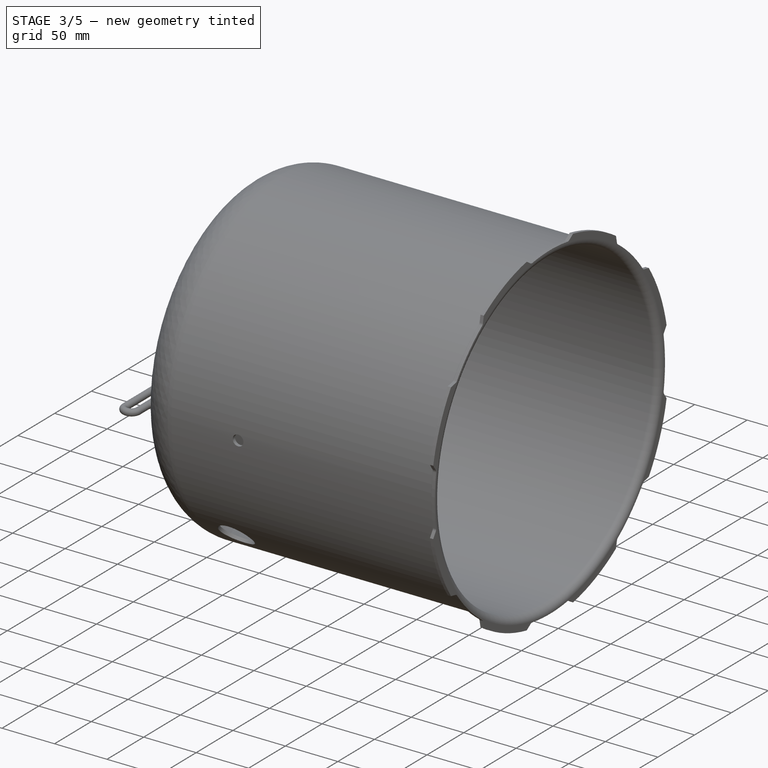
[diagram: stage 3 of 5 — iso view after this stage's code; geometry added in this stage tinted green]
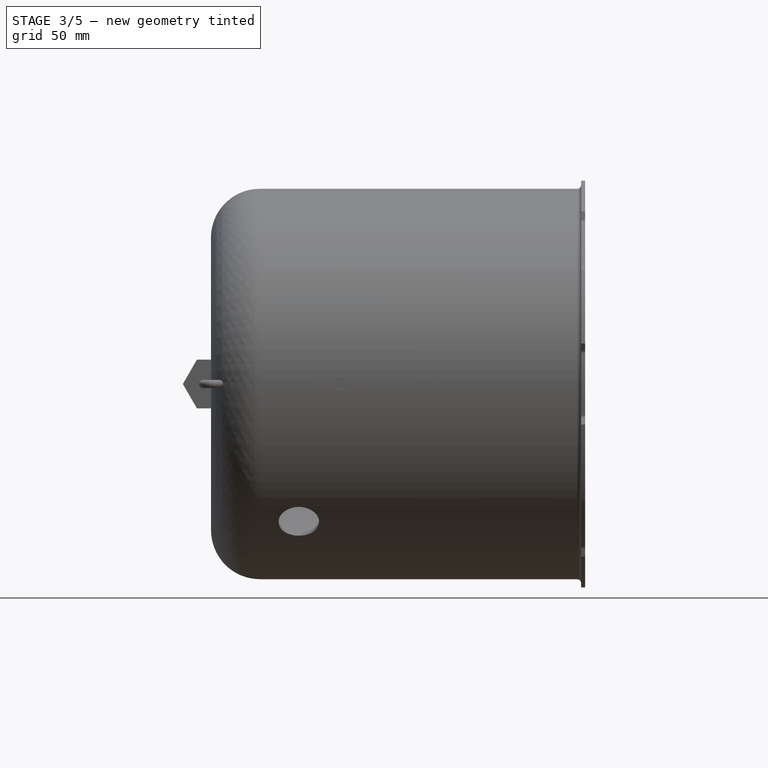
[diagram: stage 3 of 5 — front view after this stage's code; geometry added in this stage tinted green]
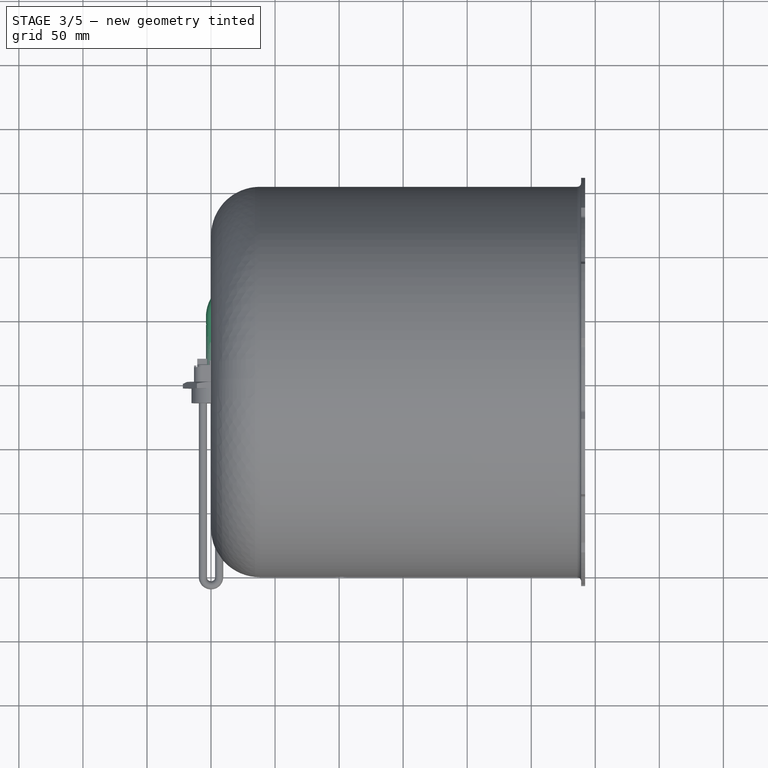
[diagram: stage 3 of 5 — top view after this stage's code; geometry added in this stage tinted green]
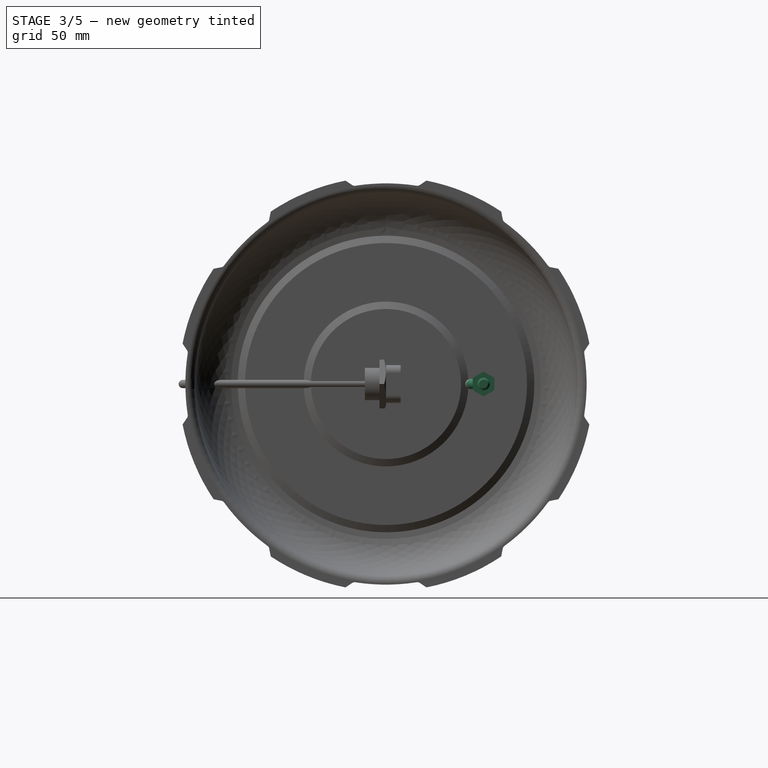
[diagram: stage 3 of 5 — right view after this stage's code; geometry added in this stage tinted green]
FEATURE [PartDesign::Body] Body002  label="lid"
  Group = -> [Sketch005,Revolution001,Sketch011,Pocket001,PolarPattern001,Sketch033,Pad003,PolarPattern002,Sketch034,Pocket002]
  Origin = -> Origin002
  Placement = pos=(319.087,0,0) rot=(-1,0,0;1.5708rad)
  Tip = -> Pocket002
FEATURE [Sketcher::SketchObject] Sketch  label="profile"
  FullyConstrained = true
  MapMode = 5
  Placement = pos=(0,0,0) rot=(1,0,0;1.5708rad)
  Support = -> [XZ_Plane]
  sketch-geometry (1):
    g0: Circle CenterX=0 CenterY=0 CenterZ=0 NormalX=0 NormalY=0 NormalZ=1 AngleXU=0 Radius=3.96875
  constraints (2):
    c: Coincident(g0,g-1)
    c: Diameter(g0) = 7.9375
FEATURE [Sketcher::SketchObject] Sketch035  label="path"
  FullyConstrained = true
  MapMode = 5
  Support = -> [XY_Plane]
  sketch-geometry (3):
    g0: LineSegment StartX=0 StartY=0 StartZ=0 EndX=0 EndY=50.8 EndZ=0
    g1: ArcOfCircle CenterX=25.4 CenterY=50.8 CenterZ=0 NormalX=0 NormalY=0 NormalZ=1 AngleXU=0 Radius=25.4 StartAngle=1.5708 EndAngle=3.14159
    g2: LineSegment StartX=25.4 StartY=76.2 StartZ=0 EndX=38.1 EndY=76.2 EndZ=0
  constraints (9):
    c: Coincident(g0,g-1)
    c: PointOnObject(g0,g-2)
    c: Tangent(g1,g0) = 1.5708
    c: Distance(g0) = 50.8
    c: Horizontal(g2)
    c: Tangent(g2,g1) = 1.5708
    c: Distance(g2) = 12.7
    c: DistanceY(g0,g1) = 76.2
    c: DistanceX(g0,g2) = 38.1
FEATURE [PartDesign::AdditivePipe] AdditivePipe
  AuxilleryCurvelinear = true
  AuxillerySpineTangent = false
  Binormal = (0,0,0)
  Mode = 0
  Placement = pos=(0,0,0) rot=(1,0,0;1.5708rad)
  Profile = -> Sketch
  Spine = -> Sketch035
  SpineTangent = false
  Transformation = 0
  Transition = 0
FEATURE [Sketcher::SketchObject] Sketch036
  ExternalGeometry = -> [AdditivePipe]
  FullyConstrained = true
  MapMode = 5
  Placement = pos=(38.1,0,0) rot=(0.707107,0,0.707107;3.14159rad)
  Support = -> [AdditivePipe]
  sketch-geometry (8):
    g0: LineSegment StartX=9.72269 StartY=-76.2 StartZ=0 EndX=4.86135 EndY=-67.7799 EndZ=0
    g1: LineSegment StartX=4.86135 StartY=-67.7799 StartZ=0 EndX=-4.86135 EndY=-67.7799 EndZ=0
    g2: LineSegment StartX=-4.86135 StartY=-67.7799 StartZ=0 EndX=-9.72269 EndY=-76.2 EndZ=0
    g3: LineSegment StartX=-9.72269 StartY=-76.2 StartZ=0 EndX=-4.86135 EndY=-84.6201 EndZ=0
    g4: LineSegment StartX=-4.86135 StartY=-84.6201 StartZ=0 EndX=4.86135 EndY=-84.6201 EndZ=0
    g5: LineSegment StartX=4.86135 StartY=-84.6201 StartZ=0 EndX=9.72269 EndY=-76.2 EndZ=0
    g6: Circle CenterX=0 CenterY=-76.2 CenterZ=0 NormalX=0 NormalY=0 NormalZ=1 AngleXU=0 Radius=9.72269
    g7: GeomPoint X=0 Y=-84.6201 Z=0
  constraints (17):
    c: Coincident(g0,g1)
    c: Coincident(g1,g2)
    c: Coincident(g2,g3)
    c: Coincident(g3,g4)
    c: Coincident(g4,g5)
    c: Coincident(g5,g0)
    c: Equal(g0, g1-g5) x5
    c: PointOnObject(g0,g6)
    c: PointOnObject(g1,g6)
    c: PointOnObject(g2,g6)
    c: PointOnObject(g3,g6)
    c: PointOnObject(g4,g6)
    c: PointOnObject(g5,g6)
    c: Coincident(g6,g-3)
    c: Symmetric(g4,g4,g7)
    c: PointOnObject(g7,g-2)
    c: Distance(g3,g0) = 16.8402
FEATURE [PartDesign::Pad] Pad
  BaseFeature = -> AdditivePipe
  Direction = (1,0,-2e-16)
  Length = 5.715
  Length2 = 10
  Placement = pos=(0,0,0) rot=(1,0,0;1.5708rad)
  Profile = -> Sketch036
  ReferenceAxis = -> Sketch036 [N_Axis]
  Type = 0
FEATURE [Sketcher::SketchObject] Sketch037
  ExternalGeometry = -> [Pad]
  FullyConstrained = true
  MapMode = 5
  Placement = pos=(43.815,0,0) rot=(0.707107,0,0.707107;3.14159rad)
  Support = -> [Pad]
  sketch-geometry (2):
    g0: Circle CenterX=0 CenterY=-76.2 CenterZ=0 NormalX=0 NormalY=0 NormalZ=1 AngleXU=0 Radius=8.4201
    g1: Circle CenterX=0 CenterY=-76.2 CenterZ=0 NormalX=0 NormalY=0 NormalZ=1 AngleXU=0 Radius=8.001
  constraints (5):
    c: PointOnObject(g0,g-2)
    c: Tangent(g0,g-8)
    c: Tangent(g0,g-5)
    c: Coincident(g1,g0)
    c: Diameter(g1) = 16.002
FEATURE [PartDesign::Pad] Pad004
  BaseFeature = -> Pad
  Direction = (1,0,-2e-16)
  Length = 0.3175
  Length2 = 10
  Placement = pos=(0,0,0) rot=(1,0,0;1.5708rad)
  Profile = -> Sketch037
  ReferenceAxis = -> Sketch037 [N_Axis]
  Type = 0
FEATURE [Sketcher::SketchObject] Sketch038
  ExternalGeometry = -> [Pad004]
  FullyConstrained = true
  MapMode = 5
  Placement = pos=(44.1325,0,0) rot=(0.707107,0,0.707107;3.14159rad)
  Support = -> [Pad004]
  sketch-geometry (1):
    g0: Circle CenterX=0 CenterY=-76.2 CenterZ=0 NormalX=0 NormalY=0 NormalZ=1 AngleXU=0 Radius=3.96875
  constraints (2):
    c: Coincident(g0,g-3)
    c: Diameter(g0) = 7.9375
FEATURE [PartDesign::Pad] Pad005
  BaseFeature = -> Pad004
  Direction = (1,0,-2e-16)
  Length = 15.875
  Length2 = 10
  Placement = pos=(0,0,0) rot=(1,0,0;1.5708rad)
  Profile = -> Sketch038
  ReferenceAxis = -> Sketch038 [N_Axis]
  Type = 0
FEATURE [Sketcher::SketchObject] Sketch039  label="thread-profile"
  AttachmentOffset = pos=(60.325,76.2,0) rot=(0,0,1;0rad)
  FullyConstrained = true
  MapMode = 5
  Placement = pos=(60.325,76.2,0) rot=(0,0,1;0rad)
  Support = -> [XY_Plane]
  sketch-geometry (5):
    g0: LineSegment StartX=-0.595095 StartY=3.96557 StartZ=0 EndX=0.595095 EndY=3.96557 EndZ=0
    g1: LineSegment StartX=-0.595095 StartY=3.96557 StartZ=0 EndX=-0.0635 EndY=4.88632 EndZ=0
    g2: LineSegment StartX=-0.0635 StartY=4.88632 StartZ=0 EndX=0.0635 EndY=4.88632 EndZ=0
    g3: LineSegment StartX=0.0635 StartY=4.88632 StartZ=0 EndX=0.595095 EndY=3.96557 EndZ=0
    g4: GeomPoint X=0 Y=3.96557 Z=0
  constraints (13):
    c: Horizontal(g0)
    c: Coincident(g1,g0)
    c: Coincident(g2,g1)
    c: Horizontal(g2)
    c: Coincident(g3,g2)
    c: Coincident(g3,g0)
    c: Equal(g1,g3)
    c: Angle(g1,g3) = 1.0472
    c: DistanceY(g0,g1) = 0.92075
    c: Distance(g2) = 0.127
    c: Symmetric(g0,g0,g4)
    c: PointOnObject(g4,g-2)
    c: DistanceY(g-1,g4) = 3.96557
FEATURE [PartDesign::AdditiveHelix] AdditiveHelix
  Angle = 0
  Axis = (1,0,0)
  Base = (60.325,76.2,0)
  BaseFeature = -> Pad005
  Growth = 0
  HasBeenEdited = true
  Height = 12.7
  LeftHanded = false
  Mode = 0
  Outside = false
  Pitch = 1.397
  Placement = pos=(0,0,0) rot=(1,0,0;1.5708rad)
  Profile = -> Sketch039
  ReferenceAxis = -> Sketch039 [H_Axis]
  Reversed = true
  Turns = 9.09091
FEATURE [PartDesign::Line] DatumLine
  AttacherType = Attacher::AttachEngineLine
  Length = 20
  MapMode = 16
  Placement = pos=(60.325,76.2,0) rot=(0.57735,0.57735,0.57735;2.0944rad)
  ResizeMode = 0
  Support = -> [Sketch039]
FEATURE [PartDesign::AdditiveHelix] AdditiveHelix001
  Angle = -80
  Axis = (1,0,0)
  Base = (60.325,76.2,0)
  BaseFeature = -> AdditiveHelix
  Growth = -7.92278
  HasBeenEdited = true
  Height = 0.3175
  LeftHanded = false
  Mode = 0
  Outside = false
  Pitch = 1.397
  Placement = pos=(0,0,0) rot=(1,0,0;1.5708rad)
  Profile = -> AdditiveHelix [Face18]
  ReferenceAxis = -> DatumLine
  Reversed = true
  Turns = 0.227273
FEATURE [Sketcher::SketchObject] Sketch040
  AttachmentOffset = pos=(60.579,76.2,0) rot=(0,0,1;0rad)
  FullyConstrained = true
  MapMode = 5
  Placement = pos=(60.579,76.2,0) rot=(0,0,1;0rad)
  Support = -> [XY_Plane]
  sketch-geometry (3):
    g0: LineSegment StartX=-1.83309 StartY=5.55625 StartZ=0 EndX=0 EndY=2.38125 EndZ=0
    g1: LineSegment StartX=-1.83309 StartY=5.55625 StartZ=0 EndX=1.83309 EndY=5.55625 EndZ=0
    g2: LineSegment StartX=1.83309 StartY=5.55625 StartZ=0 EndX=0 EndY=2.38125 EndZ=0
  constraints (9):
    c: Coincident(g1,g0)
    c: Horizontal(g1)
    c: Coincident(g2,g1)
    c: Coincident(g2,g0)
    c: Angle(g2,g0) = 1.0472
    c: DistanceY(g0,g1) = 3.175
    c: Equal(g2,g0)
    c: DistanceY(g-1,g0) = 2.38125
    c: PointOnObject(g0,g-2)
FEATURE [PartDesign::Groove] Groove
  Angle = 360
  Axis = (1,0,0)
  Base = (60.579,76.2,0)
  BaseFeature = -> AdditiveHelix001
  Placement = pos=(0,0,0) rot=(1,0,0;1.5708rad)
  Profile = -> Sketch040
  ReferenceAxis = -> Sketch040 [H_Axis]
  Reversed = true
FEATURE [Sketcher::SketchObject] Sketch041
  AttachmentOffset = pos=(0,0,-1.27) rot=(0,0,1;0rad)
  FullyConstrained = true
  MapMode = 5
  Placement = pos=(0,1.27,-6e-16) rot=(1,0,0;1.5708rad)
  Support = -> [Groove]
  sketch-geometry (2):
    g0: Circle CenterX=0 CenterY=0 CenterZ=0 NormalX=0 NormalY=0 NormalZ=1 AngleXU=0 Radius=3.683
    g1: Circle CenterX=0 CenterY=0 CenterZ=0 NormalX=0 NormalY=0 NormalZ=1 AngleXU=0 Radius=5.08
  constraints (4):
    c: Coincident(g0,g-1)
    c: Coincident(g1,g0)
    c: Diameter(g1) = 10.16
    c: Diameter(g0) = 7.366
FEATURE [PartDesign::Pocket] Pocket003
  BaseFeature = -> Groove
  Direction = (0,1,-2e-16)
  Length = 0.889
  Length2 = 5
  Placement = pos=(0,0,0) rot=(1,0,0;1.5708rad)
  Profile = -> Sketch041
  ReferenceAxis = -> Sketch041 [N_Axis]
  Type = 0
FEATURE [Sketcher::SketchObject] Sketch042
  AttachmentOffset = pos=(0,0,-44.45) rot=(0,0,1;0rad)
  FullyConstrained = true
  MapMode = 5
  Placement = pos=(0,44.45,-1.97e-14) rot=(1,0,0;1.5708rad)
  Support = -> [Pocket003]
  sketch-geometry (2):
    g0: Circle CenterX=0 CenterY=0 CenterZ=0 NormalX=0 NormalY=0 NormalZ=1 AngleXU=0 Radius=5.08
    g1: Circle CenterX=0 CenterY=0 CenterZ=0 NormalX=0 NormalY=0 NormalZ=1 AngleXU=0 Radius=3.683
  constraints (4):
    c: Coincident(g0,g-1)
    c: Coincident(g1,g0)
    c: Diameter(g0) = 10.16
    c: Diameter(g1) = 7.366
FEATURE [PartDesign::Pocket] Pocket004
  BaseFeature = -> Pocket003
  Direction = (0,1,-2e-16)
  Length = 0.889
  Length2 = 5
  Placement = pos=(0,0,0) rot=(1,0,0;1.5708rad)
  Profile = -> Sketch042
  ReferenceAxis = -> Sketch042 [N_Axis]
  Type = 0
FEATURE [PartDesign::Body] Body008  label="leads"
  Group = -> [Sketch053,Sphere,Pad010]
  Origin = -> Origin023
  Placement = pos=(59.69,76.2,0) rot=(0,0,1;0rad)
  Tip = -> Pad010
FEATURE [PartDesign::Fillet] Fillet006
  Base = -> Pocket004 [Edge20,Edge19,Edge5,Edge1,Edge8,Edge2]
  BaseFeature = -> Pocket004
  Placement = pos=(0,0,0) rot=(1,0,0;1.5708rad)
  Radius = 1.27
  SupportTransform = false
  UseAllEdges = false
FEATURE [Sketcher::SketchObject] Sketch065
  FullyConstrained = true
  MapMode = 5
  Placement = pos=(0,-16.51,3.3e-15) rot=(1,0,0;1.5708rad)
  Support = -> [Groove002]
  sketch-geometry (2):
    g0: Circle CenterX=6.35 CenterY=0 CenterZ=0 NormalX=0 NormalY=0 NormalZ=1 AngleXU=0 Radius=3.20675
    g1: Circle CenterX=-6.35 CenterY=0 CenterZ=0 NormalX=0 NormalY=0 NormalZ=1 AngleXU=0 Radius=3.20675
  constraints (6):
    c: PointOnObject(g0,g-1)
    c: PointOnObject(g1,g-1)
    c: Equal(g0,g1)
    c: Diameter(g0) = 6.4135
    c: DistanceX(g-1,g0) = 6.35
    c: DistanceX(g1,g-1) = 6.35
FEATURE [PartDesign::Pocket] Pocket010
  BaseFeature = -> Groove002
  Direction = (0,1,-2e-16)
  Length = 0.127
  Length2 = 5
  Placement = pos=(0,0,0) rot=(1,0,0;1.5708rad)
  Profile = -> Sketch065
  ReferenceAxis = -> Sketch065 [N_Axis]
  Type = 0
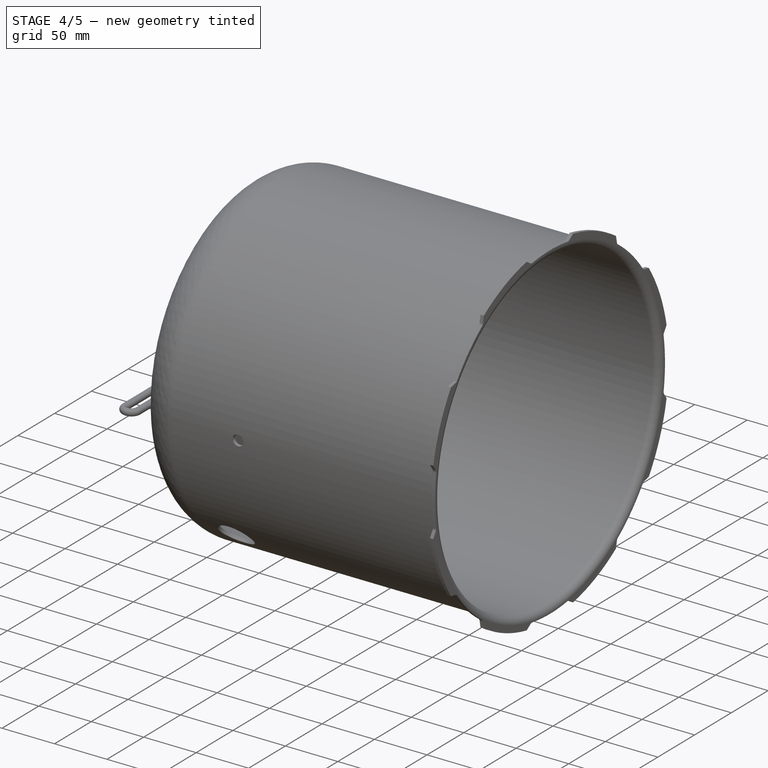
[diagram: stage 4 of 5 — iso view after this stage's code; geometry added in this stage tinted green]
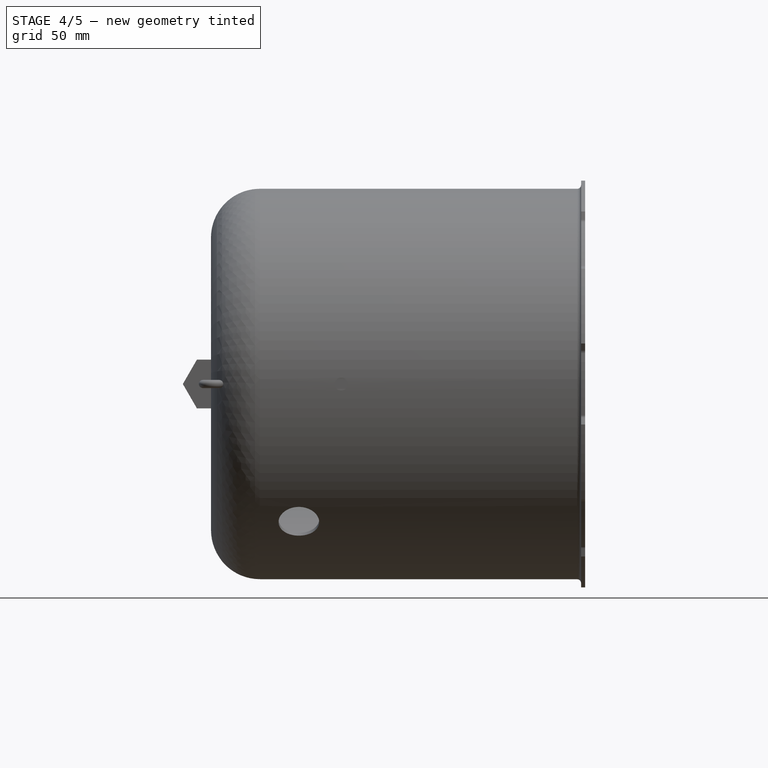
[diagram: stage 4 of 5 — front view after this stage's code; geometry added in this stage tinted green]
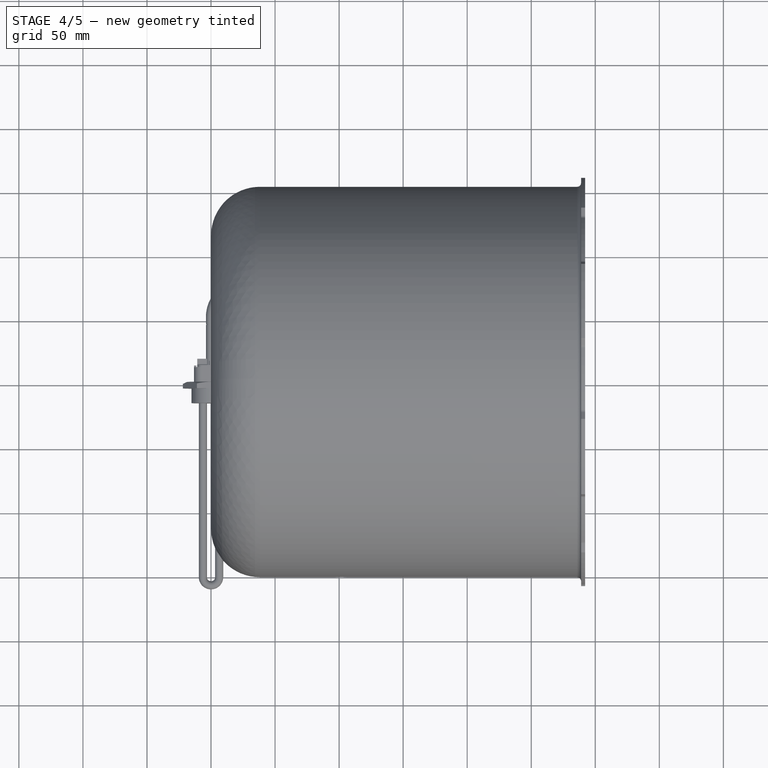
[diagram: stage 4 of 5 — top view after this stage's code; geometry added in this stage tinted green]
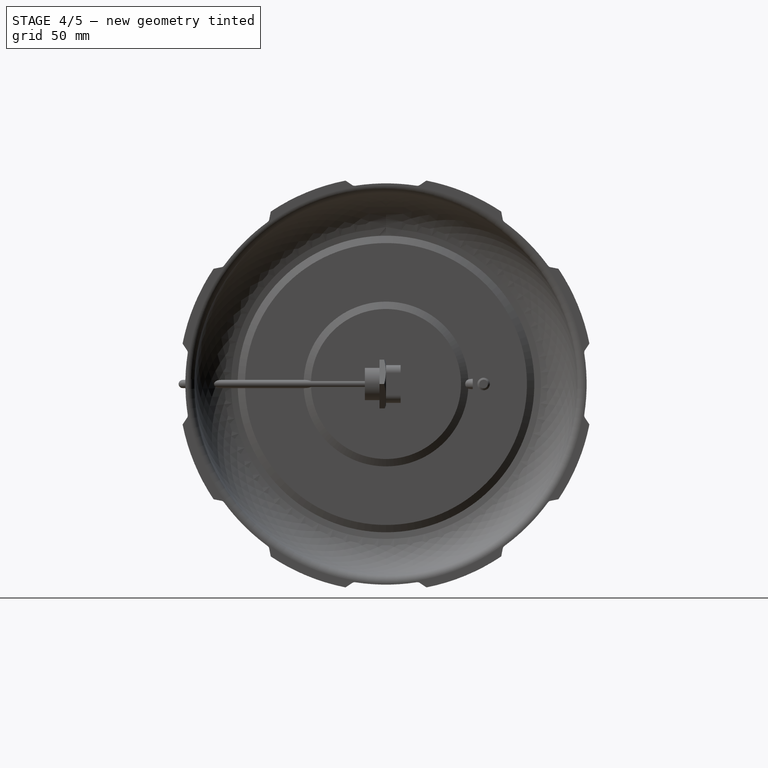
[diagram: stage 4 of 5 — right view after this stage's code; geometry added in this stage tinted green]
FEATURE [PartDesign::Body] Body003  label="float"
  Group = -> [Sketch043,Revolution002,Fillet,Fillet001]
  Origin = -> Origin018
  Placement = pos=(0,22.86,0) rot=(0,0,1;0rad)
  Tip = -> Fillet001
FEATURE [Sketcher::SketchObject] Sketch044
  FullyConstrained = true
  MapMode = 5
  Placement = pos=(0,0,0) rot=(1,0,0;1.5708rad)
  Support = -> [XZ_Plane019]
  sketch-geometry (2):
    g0: Circle CenterX=0 CenterY=0 CenterZ=0 NormalX=0 NormalY=0 NormalZ=1 AngleXU=0 Radius=7.3025
    g1: Circle CenterX=0 CenterY=0 CenterZ=0 NormalX=0 NormalY=0 NormalZ=1 AngleXU=0 Radius=3.7465
  constraints (4):
    c: Coincident(g0,g-1)
    c: Diameter(g0) = 14.605
    c: Diameter(g1) = 7.493
    c: Coincident(g1,g0)
FEATURE [PartDesign::Pad] Pad006
  Direction = (0,-1,2e-16)
  Length = 0.762
  Length2 = 10
  Placement = pos=(0,0,0) rot=(1,0,0;1.5708rad)
  Profile = -> Sketch044
  ReferenceAxis = -> Sketch044 [N_Axis]
  Type = 0
FEATURE [PartDesign::Body] Body004  label="snap-ring-front"
  Group = -> [Sketch044,Pad006,Sketch045,Pocket005,Fillet002,Fillet003]
  Origin = -> Origin019
  Placement = pos=(0,2.0955,0) rot=(0,0,1;0rad)
  Tip = -> Fillet003
FEATURE [Sketcher::SketchObject] Sketch046
  FullyConstrained = true
  MapMode = 5
  Placement = pos=(0,0,0) rot=(1,0,0;1.5708rad)
  Support = -> [XZ_Plane019]
  sketch-geometry (2):
    g0: Circle CenterX=0 CenterY=0 CenterZ=0 NormalX=0 NormalY=0 NormalZ=1 AngleXU=0 Radius=7.3025
    g1: Circle CenterX=0 CenterY=0 CenterZ=0 NormalX=0 NormalY=0 NormalZ=1 AngleXU=0 Radius=3.7465
  constraints (4):
    c: Coincident(g0,g-1)
    c: Diameter(g0) = 14.605
    c: Diameter(g1) = 7.493
    c: Coincident(g1,g0)
FEATURE [PartDesign::Pad] Pad007
  Direction = (0,-1,2e-16)
  Length = 0.762
  Length2 = 10
  Placement = pos=(0,0,0) rot=(1,0,0;1.5708rad)
  Profile = -> Sketch046
  ReferenceAxis = -> Sketch046 [N_Axis]
  Type = 0
FEATURE [Sketcher::SketchObject] Sketch047
  ExternalGeometry = -> [Pad007]
  FullyConstrained = true
  MapMode = 5
  Placement = pos=(0,-0.762,2e-16) rot=(1,0,0;1.5708rad)
  Support = -> [Pad007]
  sketch-geometry (20):
    g0: LineSegment StartX=-4.54591 StartY=-5.715 StartZ=0 EndX=4.54591 EndY=-5.715 EndZ=0
    g1: LineSegment StartX=-4.54591 StartY=-5.715 StartZ=0 EndX=-3.08781 EndY=-2.12172 EndZ=0
    g2: LineSegment StartX=-3.41538 StartY=-1.53995 StartZ=0 EndX=-5.61411 EndY=-1.06912 EndZ=0
    g3: LineSegment StartX=-0.291377 StartY=3.73515 StartZ=0 EndX=-1.53135 EndY=5.50601 EndZ=0
    g4: LineSegment StartX=0.291377 StartY=3.73515 StartZ=0 EndX=1.53135 EndY=5.50601 EndZ=0
    g5: LineSegment StartX=3.41538 StartY=-1.53995 StartZ=0 EndX=5.61411 EndY=-1.06912 EndZ=0
    g6: LineSegment StartX=4.54591 StartY=-5.715 StartZ=0 EndX=3.08781 EndY=-2.12172 EndZ=0
    g7: LineSegment StartX=-4.54591 StartY=-5.715 StartZ=0 EndX=-5.04016 EndY=-5.715 EndZ=0
    g8: LineSegment StartX=4.54591 StartY=-5.715 StartZ=0 EndX=5.04016 EndY=-5.715 EndZ=0
    g9: ArcOfCircle CenterX=0 CenterY=0 CenterZ=0 NormalX=0 NormalY=0 NormalZ=1 AngleXU=0 Radius=7.62 StartAngle=3.98965 EndAngle=5.43512
    g10: LineSegment StartX=-3.08781 StartY=-2.12172 StartZ=0 EndX=-2.8968 EndY=-1.651 EndZ=0
    g11: LineSegment StartX=-2.8968 StartY=-1.651 StartZ=0 EndX=-3.41538 EndY=-1.53995 EndZ=0
    g12: LineSegment StartX=-0.291377 StartY=3.73515 StartZ=0 EndX=0 EndY=3.31902 EndZ=0
    g13: LineSegment StartX=0 StartY=3.31902 StartZ=0 EndX=0.291377 EndY=3.73515 EndZ=0
    g14: LineSegment StartX=3.41538 StartY=-1.53995 StartZ=0 EndX=2.8968 EndY=-1.651 EndZ=0
    g15: LineSegment StartX=2.8968 StartY=-1.651 StartZ=0 EndX=3.08781 EndY=-2.12172 EndZ=0
    g16: ArcOfCircle CenterX=0 CenterY=0 CenterZ=0 NormalX=0 NormalY=0 NormalZ=1 AngleXU=0 Radius=5.715 StartAngle=1.84206 EndAngle=3.32977
    g17: ArcOfCircle CenterX=0 CenterY=0 CenterZ=0 NormalX=0 NormalY=0 NormalZ=1 AngleXU=0 Radius=5.715 StartAngle=6.095 EndAngle=7.58271
    g18: LineSegment StartX=-2.8968 StartY=-1.651 StartZ=0 EndX=2.8968 EndY=-1.651 EndZ=0
    g19: GeomPoint X=0 Y=-1.651 Z=0
  constraints (56):
    c: PointOnObject(g0,g-4)
    c: PointOnObject(g0,g-4)
    c: Horizontal(g0)
    c: Coincident(g1,g0)
    c: PointOnObject(g1,g-3)
    c: PointOnObject(g2,g-3)
    c: PointOnObject(g3,g-3)
    c: PointOnObject(g4,g-3)
    c: PointOnObject(g5,g-3)
    c: Coincident(g6,g0)
    c: PointOnObject(g6,g-3)
    c: Coincident(g7,g1)
    c: Horizontal(g7)
    c: Coincident(g8,g6)
    c: Horizontal(g8)
    c: Coincident(g9,g-4)
    c: Coincident(g9,g7)
    c: Coincident(g9,g8)
    c: Radius(g9) = 7.62
    c: Coincident(g10,g1)
    c: Coincident(g11,g10)
    c: Coincident(g11,g2)
    c: Coincident(g12,g3)
    c: Coincident(g13,g12)
    c: Coincident(g13,g4)
    c: Coincident(g14,g5)
    c: Coincident(g15,g14)
    c: Coincident(g15,g6)
    c: Coincident(g16,g9)
    c: Coincident(g16,g2)
    c: Coincident(g16,g3)
    c: Coincident(g17,g9)
    c: Coincident(g17,g4)
    c: Coincident(g17,g5)
    c: Parallel(g13,g4)
    c: Parallel(g12,g3)
    c: Parallel(g11,g2)
    c: Parallel(g10,g1)
    c: Parallel(g15,g6)
    c: Parallel(g14,g5)
    c: Angle(g11,g10) = 1.39626
    c: Angle(g15,g14) = 1.39626
    c: PointOnObject(g12,g-2)
    c: Angle(g13,g12) = 1.22173
    c: Equal(g16,g17)
    c: Radius(g17) = 5.715
    c: Coincident(g18,g10)
    c: Coincident(g18,g14)
    c: Horizontal(g18)
    c: Symmetric(g18,g18,g19)
    c: PointOnObject(g19,g-2)
    c: DistanceY(g19,g9) = 1.651
    c: DistanceY(g1,g9) = 5.715
    c: Equal(g13,g12)
    c: Distance(g13) = 0.508
    c: Equal(g13,g10)
FEATURE [PartDesign::Pocket] Pocket006
  BaseFeature = -> Pad007
  Direction = (0,1,-2e-16)
  Length = 5
  Length2 = 5
  Placement = pos=(0,0,0) rot=(1,0,0;1.5708rad)
  Profile = -> Sketch047
  ReferenceAxis = -> Sketch047 [N_Axis]
  Type = 1
FEATURE [PartDesign::Fillet] Fillet004
  Base = -> Pocket006 [Edge2,Edge30]
  BaseFeature = -> Pocket006
  Placement = pos=(0,0,0) rot=(1,0,0;1.5708rad)
  Radius = 0.79375
  SupportTransform = false
  UseAllEdges = false
FEATURE [PartDesign::Fillet] Fillet005
  Base = -> Fillet004 [Edge39,Edge42,Edge41,Edge44]
  BaseFeature = -> Fillet004
  Placement = pos=(0,0,0) rot=(1,0,0;1.5708rad)
  Radius = 0.635
  SupportTransform = false
  UseAllEdges = false
FEATURE [PartDesign::Body] Body005  label="snap-ring-rear"
  Group = -> [Sketch046,Pad007,Sketch047,Pocket006,Fillet004,Fillet005]
  Origin = -> Origin020
  Placement = pos=(0,45.2755,0) rot=(0,0,1;0rad)
  Tip = -> Fillet005
FEATURE [Sketcher::SketchObject] Sketch048
  FullyConstrained = true
  MapMode = 5
  Placement = pos=(0,0,0) rot=(0.57735,0.57735,0.57735;2.0944rad)
  Support = -> [YZ_Plane021]
  sketch-geometry (2):
    g0: Circle CenterX=0 CenterY=0 CenterZ=0 NormalX=0 NormalY=0 NormalZ=1 AngleXU=0 Radius=9.04875
    g1: Circle CenterX=0 CenterY=0 CenterZ=0 NormalX=0 NormalY=0 NormalZ=1 AngleXU=0 Radius=5.715
  constraints (4):
    c: Coincident(g0,g-1)
    c: Coincident(g1,g0)
    c: Diameter(g0) = 18.0975
    c: Diameter(g1) = 11.43
FEATURE [PartDesign::Pad] Pad008
  Direction = (1,-2e-16,3e-16)
  Length = 2.54
  Length2 = 10
  Placement = pos=(0,0,0) rot=(0.57735,0.57735,0.57735;2.0944rad)
  Profile = -> Sketch048
  ReferenceAxis = -> Sketch048 [N_Axis]
  Type = 0
FEATURE [PartDesign::Body] Body006  label="seal"
  Group = -> [Sketch048,Pad008]
  Origin = -> Origin021
  Placement = pos=(44.1706,76.2,0) rot=(0,0,1;0rad)
  Tip = -> Pad008
FEATURE [Sketcher::SketchObject] Sketch049
  FullyConstrained = true
  MapMode = 5
  Placement = pos=(0,0,0) rot=(0.57735,0.57735,0.57735;2.0944rad)
  Support = -> [YZ_Plane022]
  sketch-geometry (8):
    g0: Circle CenterX=0 CenterY=0 CenterZ=0 NormalX=0 NormalY=0 NormalZ=1 AngleXU=0 Radius=5.08
    g1: LineSegment StartX=-9.6787 StartY=0 StartZ=0 EndX=-4.83935 EndY=-8.382 EndZ=0
    g2: LineSegment StartX=-4.83935 StartY=-8.382 StartZ=0 EndX=4.83935 EndY=-8.382 EndZ=0
    g3: LineSegment StartX=4.83935 StartY=-8.382 StartZ=0 EndX=9.6787 EndY=-1.3394e-12 EndZ=0
    g4: LineSegment StartX=9.6787 StartY=-1.3394e-12 StartZ=0 EndX=4.83935 EndY=8.382 EndZ=0
    g5: LineSegment StartX=4.83935 StartY=8.382 StartZ=0 EndX=-4.83935 EndY=8.382 EndZ=0
    g6: LineSegment StartX=-4.83935 StartY=8.382 StartZ=0 EndX=-9.6787 EndY=0 EndZ=0
    g7: Circle CenterX=0 CenterY=0 CenterZ=0 NormalX=0 NormalY=0 NormalZ=1 AngleXU=0 Radius=9.6787
  constraints (18):
    c: Coincident(g0,g-1)
    c: Diameter(g0) = 10.16
    c: Coincident(g1,g2)
    c: Coincident(g2,g3)
    c: Coincident(g3,g4)
    c: Coincident(g4,g5)
    c: Coincident(g5,g6)
    c: Coincident(g6,g1)
    c: Equal(g1, g2-g6) x5
    c: PointOnObject(g1,g7)
    c: PointOnObject(g2,g7)
    c: PointOnObject(g3,g7)
    c: PointOnObject(g4,g7)
    c: PointOnObject(g5,g7)
    c: PointOnObject(g6,g7)
    c: Coincident(g7,g0)
    c: PointOnObject(g6,g-1)
    c: Distance(g1,g4) = 16.764
FEATURE [PartDesign::Pad] Pad009
  Direction = (1,-2e-16,3e-16)
  Length = 7.9375
  Length2 = 10
  Placement = pos=(0,0,0) rot=(0.57735,0.57735,0.57735;2.0944rad)
  Profile = -> Sketch049
  ReferenceAxis = -> Sketch049 [N_Axis]
  Type = 0
FEATURE [Sketcher::SketchObject] Sketch050
  AttachmentOffset = pos=(-0.635,0,0) rot=(0,0,1;0rad)
  FullyConstrained = true
  MapMode = 5
  Placement = pos=(-0.635,0,0) rot=(1,0,0;1.5708rad)
  Support = -> [XZ_Plane022]
  sketch-geometry (5):
    g0: LineSegment StartX=-0.545014 StartY=5.11175 StartZ=0 EndX=-0.03175 EndY=4.22275 EndZ=0
    g1: LineSegment StartX=-0.03175 StartY=4.22275 StartZ=0 EndX=0.03175 EndY=4.22275 EndZ=0
    g2: LineSegment StartX=0.03175 StartY=4.22275 StartZ=0 EndX=0.545014 EndY=5.11175 EndZ=0
    g3: LineSegment StartX=0.545014 StartY=5.11175 StartZ=0 EndX=-0.545014 EndY=5.11175 EndZ=0
    g4: GeomPoint X=0 Y=5.11175 Z=0
  constraints (13):
    c: Coincident(g1,g0)
    c: Horizontal(g1)
    c: Coincident(g2,g1)
    c: Coincident(g3,g2)
    c: Coincident(g3,g0)
    c: Horizontal(g3)
    c: Symmetric(g3,g3,g4)
    c: Distance(g1) = 0.0635
    c: PointOnObject(g4,g-2)
    c: Angle(g2,g0) = 1.0472
    c: Equal(g2,g0)
    c: DistanceY(g1,g2) = 0.889
    c: DistanceY(g-1,g4) = 5.11175
FEATURE [PartDesign::AdditiveHelix] AdditiveHelix002
  Angle = 0
  Axis = (1,0,0)
  Base = (0,0,0)
  BaseFeature = -> Pad009
  Growth = 0
  HasBeenEdited = true
  Height = 9.525
  LeftHanded = false
  Mode = 0
  Outside = false
  Pitch = 1.397
  Placement = pos=(0,0,0) rot=(0.57735,0.57735,0.57735;2.0944rad)
  Profile = -> Sketch050
  ReferenceAxis = -> X_Axis022
  Turns = 6.81818
FEATURE [Sketcher::SketchObject] Sketch051
  AttachmentOffset = pos=(3.96875,0,0) rot=(0,0,1;0rad)
  ExternalGeometry = -> [AdditiveHelix002]
  FullyConstrained = true
  MapMode = 5
  Placement = pos=(3.96875,0,0) rot=(0,0,1;0rad)
  Support = -> [XY_Plane022]
  sketch-geometry (18):
    g0: LineSegment StartX=0.85725 StartY=0 StartZ=0 EndX=6.35651 EndY=9.525 EndZ=0
    g1: LineSegment StartX=-0.85725 StartY=0 StartZ=0 EndX=-6.35651 EndY=9.525 EndZ=0
    g2: LineSegment StartX=-6.35651 StartY=9.525 StartZ=0 EndX=6.35651 EndY=9.525 EndZ=0
    g3: GeomPoint X=0 Y=9.525 Z=0
    g4: LineSegment StartX=-0.85725 StartY=0 StartZ=0 EndX=0.85725 EndY=0 EndZ=0
    g5: GeomPoint X=-3.65125 Y=4.83935 Z=0
    g6: LineSegment StartX=-6.35651 StartY=9.525 StartZ=0 EndX=-6.35651 EndY=0 EndZ=0
    g7: LineSegment StartX=6.35651 StartY=9.525 StartZ=0 EndX=6.35651 EndY=0 EndZ=0
    g8: LineSegment StartX=6.35651 StartY=0 StartZ=0 EndX=0.85725 EndY=0 EndZ=0
    g9: LineSegment StartX=-6.35651 StartY=0 StartZ=0 EndX=-0.85725 EndY=0 EndZ=0
    g10: LineSegment StartX=-4.4948 StartY=7.72895 StartZ=0 EndX=-0.902699 EndY=11.3211 EndZ=0
    g11: LineSegment StartX=4.4948 StartY=7.72895 StartZ=0 EndX=0.902699 EndY=11.3211 EndZ=0
    g12: GeomPoint X=-2.69875 Y=9.525 Z=0
    g13: GeomPoint X=2.69875 Y=9.525 Z=0
    g14: LineSegment StartX=-4.4948 StartY=7.72895 StartZ=0 EndX=-5.8096 EndY=12.6359 EndZ=0
    g15: LineSegment StartX=-5.8096 StartY=12.6359 StartZ=0 EndX=-0.902699 EndY=11.3211 EndZ=0
    g16: LineSegment StartX=0.902699 StartY=11.3211 StartZ=0 EndX=5.8096 EndY=12.6359 EndZ=0
    g17: LineSegment StartX=5.8096 StartY=12.6359 StartZ=0 EndX=4.4948 EndY=7.72895 EndZ=0
  constraints (44):
    c: Horizontal(g2)
    c: Symmetric(g2,g2,g3)
    c: PointOnObject(g3,g-2)
    c: Angle(g0,g1) = 1.0472
    c: PointOnObject(g0,g-1)
    c: Coincident(g4,g1)
    c: Coincident(g4,g0)
    c: Coincident(g0,g2)
    c: Coincident(g2,g1)
    c: Symmetric(g4,g4,g-1)
    c: DistanceY(g-1,g3) = 9.525
    c: PointOnObject(g5,g1)
    c: PointOnObject(g5,g-5)
    c: DistanceX(g-5,g5) = 0.3175
    c: Coincident(g6,g1)
    c: PointOnObject(g6,g-1)
    c: Vertical(g6)
    c: Coincident(g7,g0)
    c: PointOnObject(g7,g-1)
    c: Vertical(g7)
    c: Coincident(g8,g7)
    c: Coincident(g8,g0)
    c: Coincident(g9,g6)
    c: Coincident(g9,g1)
    c: Symmetric(g11,g11,g13)
    c: Symmetric(g10,g10,g12)
    c: Angle(g11,g2) = 0.785398
    c: Angle(g2,g10) = 0.785398
    c: PointOnObject(g12,g2)
    c: PointOnObject(g13,g2)
    c: Coincident(g14,g10)
    c: Coincident(g15,g14)
    c: Coincident(g15,g10)
    c: Coincident(g16,g11)
    c: Coincident(g17,g16)
    c: Coincident(g17,g11)
    c: Equal(g15,g10)
    c: Equal(g10,g14)
    c: Equal(g14,g16)
    c: Equal(g16,g11)
    c: Equal(g11,g17)
    c: Distance(g16) = 5.08
    c: DistanceX(g-6,g12) = 1.27
    c: DistanceX(g13,g-6) = 1.27
FEATURE [PartDesign::Groove] Groove001
  Angle = 360
  Axis = (1,0,0)
  Base = (0,0,0)
  BaseFeature = -> AdditiveHelix002
  Placement = pos=(0,0,0) rot=(0.57735,0.57735,0.57735;2.0944rad)
  Profile = -> Sketch051
  ReferenceAxis = -> X_Axis022
  Reversed = true
FEATURE [PartDesign::Body] Body007  label="nut"
  Group = -> [Sketch049,Pad009,Sketch050,AdditiveHelix002,Sketch051,Groove001]
  Origin = -> Origin022
  Placement = pos=(50.8,76.2,0) rot=(0,0,1;0rad)
  Tip = -> Groove001
FEATURE [Sketcher::SketchObject] Sketch052
  FullyConstrained = true
  MapMode = 5
  Placement = pos=(0,0,0) rot=(1,0,0;1.5708rad)
  Support = -> [XZ_Plane001]
  sketch-geometry (1):
    g0: Circle CenterX=101.6 CenterY=0 CenterZ=0 NormalX=0 NormalY=0 NormalZ=1 AngleXU=0 Radius=5.08
  constraints (3):
    c: PointOnObject(g0,g-1)
    c: Diameter(g0) = 10.16
    c: DistanceX(g-1,g0) = 101.6
FEATURE [Sketcher::SketchObject] Sketch053
  FullyConstrained = true
  MapMode = 5
  Placement = pos=(0,0,0) rot=(0.57735,0.57735,0.57735;2.0944rad)
  Support = -> [YZ_Plane023]
  sketch-geometry (2):
    g0: Circle CenterX=0 CenterY=0.9525 CenterZ=0 NormalX=0 NormalY=0 NormalZ=1 AngleXU=0 Radius=0.635
    g1: Circle CenterX=0 CenterY=-0.9525 CenterZ=0 NormalX=0 NormalY=0 NormalZ=1 AngleXU=0 Radius=0.635
  constraints (6):
    c: PointOnObject(g0,g-2)
    c: PointOnObject(g1,g-2)
    c: Equal(g0,g1)
    c: Diameter(g0) = 1.27
    c: DistanceY(g-1,g0) = 0.9525
    c: DistanceY(g1,g-1) = 0.9525
FEATURE [PartDesign::AdditiveSphere] Sphere
  Angle1 = -90
  Angle2 = 90
  Angle3 = 360
  AttacherType = Attacher::AttachEngine3D
  MapMode = 5
  Placement = pos=(0,0,0) rot=(0.57735,0.57735,0.57735;2.0944rad)
  Radius = 1.905
  Support = -> [YZ_Plane023]
FEATURE [PartDesign::Pad] Pad010
  BaseFeature = -> Sphere
  Direction = (1,-2e-16,3e-16)
  Length = 12.7
  Length2 = 10
  Placement = pos=(0,0,0) rot=(0.57735,0.57735,0.57735;2.0944rad)
  Profile = -> Sketch053
  ReferenceAxis = -> Sketch053 [N_Axis]
  Type = 0
FEATURE [PartDesign::Chamfer] Chamfer
  Angle = 45
  Base = -> Fillet006 [Face2]
  BaseFeature = -> Fillet006
  ChamferType = 0
  FlipDirection = false
  Placement = pos=(0,0,0) rot=(1,0,0;1.5708rad)
  Size = 0.3175
  Size2 = 1
  SupportTransform = false
  UseAllEdges = false
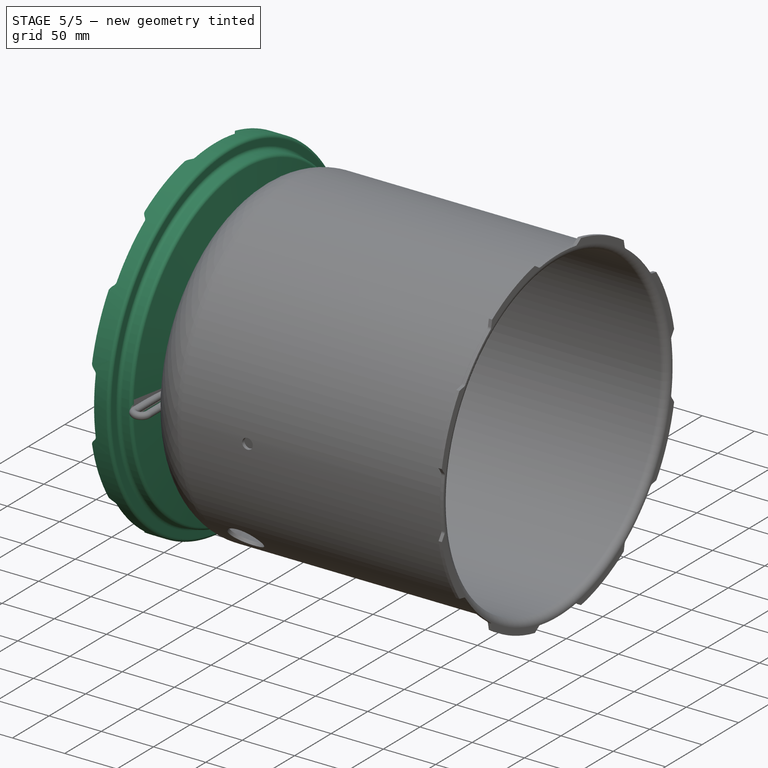
[diagram: stage 5 of 5 — iso view after this stage's code; geometry added in this stage tinted green]
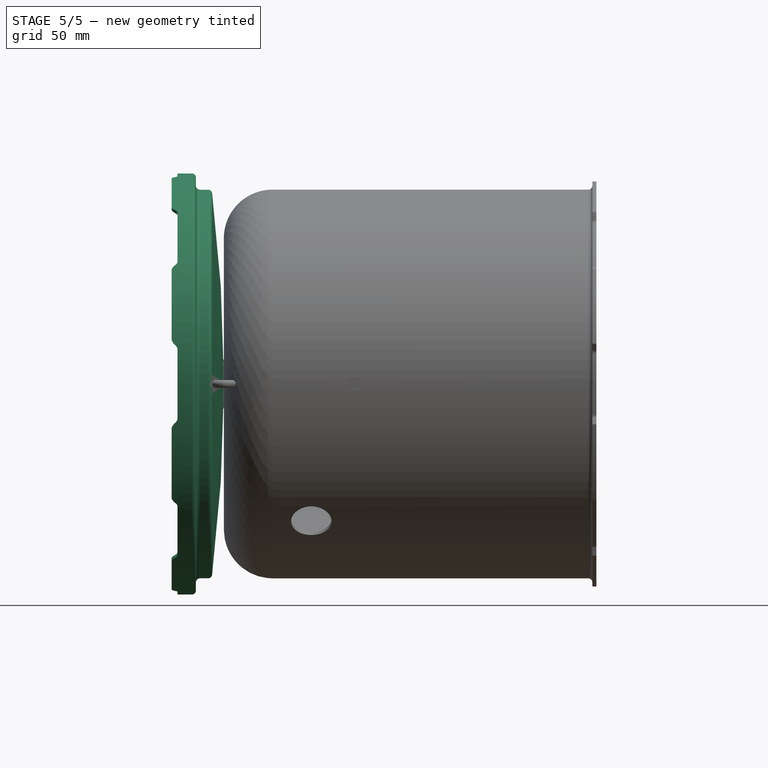
[diagram: stage 5 of 5 — front view after this stage's code; geometry added in this stage tinted green]
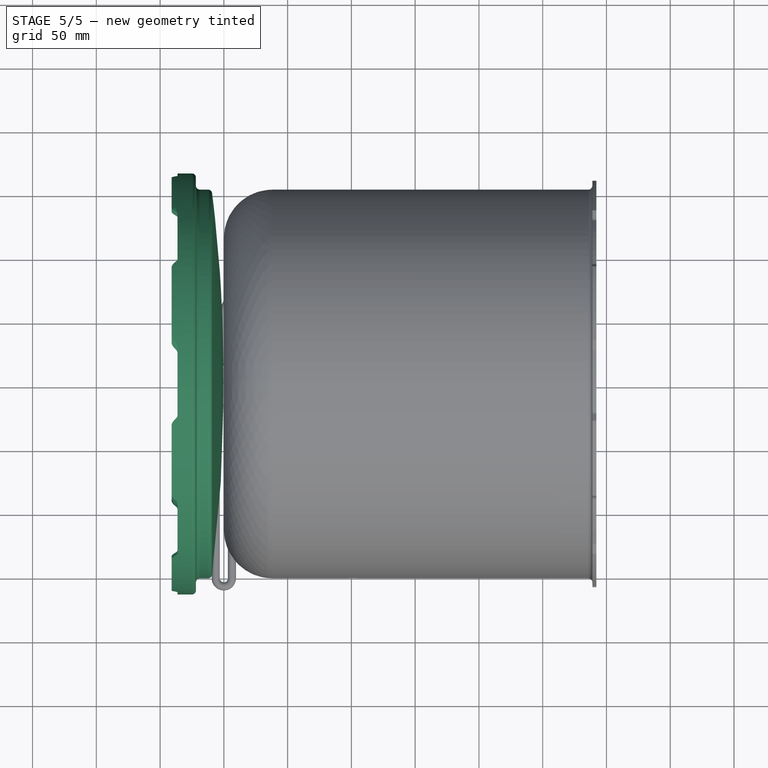
[diagram: stage 5 of 5 — top view after this stage's code; geometry added in this stage tinted green]
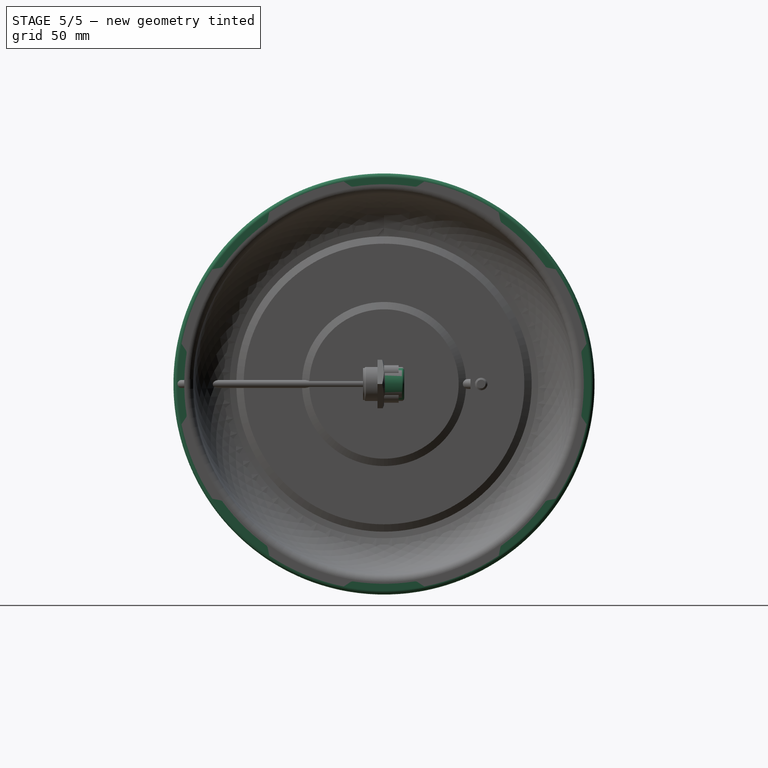
[diagram: stage 5 of 5 — right view after this stage's code; geometry added in this stage tinted green]
FEATURE [Sketcher::SketchObject] Sketch004
  ExternalGeometry = -> [Revolution]
  FullyConstrained = true
  MapMode = 5
  Placement = pos=(0,0,0) rot=(0.57735,0.57735,0.57735;2.0944rad)
  Support = -> [YZ_Plane016]
  sketch-geometry (8):
    g0: LineSegment StartX=158.814 StartY=31.59 StartZ=0 EndX=155.286 EndY=26.3102 EndZ=0
    g1: LineSegment StartX=158.814 StartY=-31.59 StartZ=0 EndX=155.286 EndY=-26.3102 EndZ=0
    g2: ArcOfCircle CenterX=0 CenterY=0 CenterZ=0 NormalX=0 NormalY=0 NormalZ=1 AngleXU=0 Radius=161.925 StartAngle=6.08684 EndAngle=6.47953
    g3: LineSegment StartX=0 StartY=0 StartZ=0 EndX=158.814 EndY=31.59 EndZ=0
    g4: LineSegment StartX=0 StartY=0 StartZ=0 EndX=158.814 EndY=-31.59 EndZ=0
    g5: ArcOfCircle CenterX=0 CenterY=0 CenterZ=0 NormalX=0 NormalY=0 NormalZ=1 AngleXU=0 Radius=156.647 StartAngle=6.12899 EndAngle=6.43738
    g6: ArcOfCircle CenterX=157.926 CenterY=24.5462 CenterZ=0 NormalX=0 NormalY=0 NormalZ=1 AngleXU=0 Radius=3.175 StartAngle=2.55254 EndAngle=3.29579
    g7: ArcOfCircle CenterX=157.926 CenterY=-24.5462 CenterZ=0 NormalX=0 NormalY=0 NormalZ=1 AngleXU=0 Radius=3.175 StartAngle=2.9874 EndAngle=3.73064
  constraints (20):
    c: Coincident(g2,g0)
    c: Coincident(g2,g1)
    c: Coincident(g3,g2)
    c: Coincident(g3,g0)
    c: Coincident(g4,g2)
    c: Coincident(g4,g1)
    c: Coincident(g5,g2)
    c: Angle(g3,g0) = 0.785398
    c: Angle(g1,g4) = 0.785398
    c: Angle(g4,g3) = 0.392699
    c: Angle(g-1,g3) = 0.19635
    c: Tangent(g0,g6) = -1.5708
    c: Tangent(g5,g6) = 1.5708
    c: Tangent(g1,g7) = 1.5708
    c: Tangent(g5,g7) = 1.5708
    c: Radius(g6) = 3.175
    c: Radius(g7) = 3.175
    c: PointOnObject(g0,g-3)
    c: Coincident(g2,g-4)
    c: Distance(g0) = 6.35
FEATURE [Sketcher::SketchObject] Sketch005
  FullyConstrained = true
  MapMode = 5
  Support = -> [XY_Plane002]
  sketch-geometry (16):
    g0: ArcOfCircle CenterX=-1219.2 CenterY=0 CenterZ=0 NormalX=0 NormalY=0 NormalZ=1 AngleXU=0 Radius=1219.2 StartAngle=0 EndAngle=0.123026
    g1: LineSegment StartX=-12.3658 StartY=152.4 StartZ=0 EndX=-18.7398 EndY=152.4 EndZ=0
    g2: LineSegment StartX=-21.9148 StartY=155.575 StartZ=0 EndX=-21.9148 EndY=161.925 EndZ=0
    g3: LineSegment StartX=-25.0898 StartY=165.1 StartZ=0 EndX=-40.9648 EndY=165.1 EndZ=0
    g4: ArcOfCircle CenterX=-12.3658 CenterY=149.225 CenterZ=0 NormalX=0 NormalY=0 NormalZ=1 AngleXU=0 Radius=3.175 StartAngle=0.123026 EndAngle=1.5708
    g5: ArcOfCircle CenterX=-18.7398 CenterY=155.575 CenterZ=0 NormalX=0 NormalY=0 NormalZ=1 AngleXU=0 Radius=3.175 StartAngle=3.14159 EndAngle=4.71239
    g6: GeomPoint X=-21.9148 Y=152.4 Z=0
    g7: ArcOfCircle CenterX=-25.0898 CenterY=161.925 CenterZ=0 NormalX=0 NormalY=0 NormalZ=1 AngleXU=0 Radius=3.175 StartAngle=3.3e-15 EndAngle=1.5708
    g8: GeomPoint X=-21.9148 Y=165.1 Z=0
    g9: LineSegment StartX=-40.9648 StartY=165.1 StartZ=0 EndX=-40.9648 EndY=161.925 EndZ=0
    g10: LineSegment StartX=-40.9648 StartY=161.925 StartZ=0 EndX=-25.0898 EndY=161.925 EndZ=0
    g11: LineSegment StartX=-25.0898 StartY=161.925 StartZ=0 EndX=-25.0898 EndY=155.575 EndZ=0
    g12: ArcOfCircle CenterX=-18.7398 CenterY=155.575 CenterZ=0 NormalX=0 NormalY=0 NormalZ=1 AngleXU=0 Radius=6.35 StartAngle=3.14159 EndAngle=4.71239
    g13: LineSegment StartX=-18.7398 StartY=149.225 StartZ=0 EndX=-12.3658 EndY=149.225 EndZ=0
    g14: ArcOfCircle CenterX=-1219.2 CenterY=0 CenterZ=0 NormalX=0 NormalY=0 NormalZ=1 AngleXU=0 Radius=1216.02 StartAngle=0 EndAngle=0.123026
    g15: LineSegment StartX=-3.175 StartY=0 StartZ=0 EndX=0 EndY=0 EndZ=0
  constraints (39):
    c: PointOnObject(g0,g-1)
    c: Coincident(g0,g-1)
    c: Radius(g0) = 1219.2
    c: Horizontal(g1)
    c: Vertical(g2)
    c: Horizontal(g3)
    c: DistanceY(g6,g8) = 12.7
    c: DistanceX(g3,g8) = 19.05
    c: Tangent(g0,g4) = -1.5708
    c: Tangent(g1,g4) = -1.5708
    c: PointOnObject(g6,g1)
    c: PointOnObject(g6,g2)
    c: Tangent(g1,g5) = 1.5708
    c: Tangent(g2,g5) = 1.5708
    c: PointOnObject(g8,g2)
    c: PointOnObject(g8,g3)
    c: Tangent(g2,g7) = -1.5708
    c: Tangent(g3,g7) = -1.5708
    c: Radius(g4) = 3.175
    c: Radius(g5) = 3.175
    c: Radius(g7) = 3.175
    c: DistanceX(g6,g0) = 12.7
    c: Distance(g0,g1) = 152.4
    c: Coincident(g9,g3)
    c: Vertical(g9)
    c: DistanceY(g9,g9) = 3.175
    c: Coincident(g10,g9)
    c: Coincident(g10,g7)
    c: Coincident(g11,g7)
    c: Vertical(g11)
    c: Coincident(g12,g5)
    c: Tangent(g12,g11) = -1.5708
    c: Coincident(g13,g4)
    c: Tangent(g13,g12) = -1.5708
    c: Coincident(g14,g0)
    c: Coincident(g14,g4)
    c: PointOnObject(g14,g-1)
    c: Coincident(g15,g14)
    c: Coincident(g15,g0)
FEATURE [PartDesign::Revolution] Revolution001
  Angle = 360
  Axis = (1,0,0)
  Base = (0,0,0)
  Profile = -> Sketch005
  ReferenceAxis = -> Sketch005 [H_Axis]
FEATURE [Sketcher::SketchObject] Sketch011  label="cut-extrude-profile"
  FullyConstrained = true
  MapMode = 5
  Placement = pos=(0,0,0) rot=(1,0,0;1.5708rad)
  Support = -> [XZ_Plane002]
  sketch-geometry (28):
    g0: ArcOfCircle CenterX=-39.5224 CenterY=26.9875 CenterZ=0 NormalX=0 NormalY=0 NormalZ=1 AngleXU=0 Radius=3.175 StartAngle=4e-16 EndAngle=1.5708
    g1: LineSegment StartX=-36.3474 StartY=26.9875 StartZ=0 EndX=-36.3474 EndY=-26.9875 EndZ=0
    g2: ArcOfCircle CenterX=-39.5224 CenterY=-26.9875 CenterZ=0 NormalX=0 NormalY=0 NormalZ=1 AngleXU=0 Radius=3.175 StartAngle=4.71239 EndAngle=6.28319
    g3: LineSegment StartX=-39.5224 StartY=-30.1625 StartZ=0 EndX=-42.8244 EndY=-30.1625 EndZ=0
    g4: ArcOfCircle CenterX=-42.8244 CenterY=-26.9875 CenterZ=0 NormalX=0 NormalY=0 NormalZ=1 AngleXU=0 Radius=3.175 StartAngle=3.14159 EndAngle=4.71239
    g5: LineSegment StartX=-45.9994 StartY=-26.9875 StartZ=0 EndX=-45.9994 EndY=26.9875 EndZ=0
    g6: ArcOfCircle CenterX=-42.8244 CenterY=26.9875 CenterZ=0 NormalX=0 NormalY=0 NormalZ=1 AngleXU=0 Radius=3.175 StartAngle=1.5708 EndAngle=3.14159
    g7: LineSegment StartX=-42.8244 StartY=30.1625 StartZ=0 EndX=-39.5224 EndY=30.1625 EndZ=0
    g8: GeomPoint X=-36.3474 Y=30.1625 Z=0
    g9: GeomPoint X=-45.9994 Y=-30.1625 Z=0
    g10: GeomPoint X=-36.3474 Y=0 Z=0
    g11-g14: Circle x4 (B-spline internal-alignment scaffolding for g15; pole/knot coordinates omitted)
    g15: BSplineCurve PolesCount=4 KnotsCount=2 Degree=3 IsPeriodic=0
    g16: GeomPoint X=-36.3474 Y=26.9875 Z=0
    g17: GeomPoint X=-41.1074 Y=34.925 Z=0
    g18: LineSegment StartX=-36.3474 StartY=-30.1625 StartZ=0 EndX=-36.3474 EndY=-26.9875 EndZ=0
    g19: LineSegment StartX=-39.5224 StartY=-30.1625 StartZ=0 EndX=-36.3474 EndY=-30.1625 EndZ=0
    g20-g23: Circle x4 (B-spline internal-alignment scaffolding for g24; pole/knot coordinates omitted)
    g24: BSplineCurve PolesCount=4 KnotsCount=2 Degree=3 IsPeriodic=0
    g25: GeomPoint X=-36.3474 Y=-26.9875 Z=0
    g26: GeomPoint X=-41.1074 Y=-34.925 Z=0
    g27: LineSegment StartX=-41.1074 StartY=34.925 StartZ=0 EndX=-41.1074 EndY=-34.925 EndZ=0
  constraints (56):
    c: Tangent(g0,g1) = 1.5708
    c: Tangent(g1,g2) = 1.5708
    c: Tangent(g2,g3) = 1.5708
    c: Tangent(g3,g4) = 1.5708
    c: Tangent(g4,g5) = 1.5708
    c: Tangent(g5,g6) = 1.5708
    c: Tangent(g6,g7) = 1.5708
    c: Tangent(g7,g0) = 1.5708
    c: Horizontal(g3)
    c: Horizontal(g7)
    c: Vertical(g1)
    c: Vertical(g5)
    c: Equal(g0,g2)
    c: Equal(g2,g4)
    c: Equal(g4,g6)
    c: PointOnObject(g8,g1)
    c: PointOnObject(g8,g7)
    c: PointOnObject(g9,g3)
    c: PointOnObject(g9,g5)
    c: Radius(g6) = 3.175
    c: Distance(g1,g5) = 9.652
    c: Distance(g0,g3) = 60.325
    c: PointOnObject(g10,g-1)
    c: DistanceX(g10,g-1) = 36.3474
    c: Symmetric(g1,g1,g10)
    c: Weight(g11) = 1
    c: Coincident(g15,g1)
    c: Equal(g11,g12)
    c: Coincident(g12,g8)
    c: Equal(g11,g13)
    c: Coincident(g13,g0)
    c: Equal(g11,g14)
    c: InternalAlignment(g11-g14 -> g15) x4
    c: InternalAlignment(g16,g15)
    c: InternalAlignment(g17,g15)
    c: DistanceY(g1,g15) = 7.9375
    c: Coincident(g18,g1)
    c: Vertical(g18)
    c: Coincident(g19,g2)
    c: Horizontal(g19)
    c: Coincident(g19,g18)
    c: Weight(g20) = 1
    c: Coincident(g24,g1)
    c: Equal(g20,g21)
    c: Coincident(g21,g18)
    c: Equal(g20,g22)
    c: Coincident(g22,g2)
    c: Equal(g20,g23)
    c: InternalAlignment(g20-g23 -> g24) x4
    c: InternalAlignment(g25,g24)
    c: InternalAlignment(g26,g24)
    c: DistanceY(g24,g1) = 7.9375
    c: Coincident(g27,g15)
    c: Coincident(g27,g24)
    c: Distance(g1,g27) = 4.76
    c: Vertical(g27)
FEATURE [PartDesign::Pocket] Pocket001
  BaseFeature = -> Revolution001
  Direction = (0,1,2e-16)
  Length = 5
  Length2 = 5
  Profile = -> Sketch011
  ReferenceAxis = -> Sketch011 [N_Axis]
  Type = 1
FEATURE [PartDesign::PolarPattern] PolarPattern001
  Angle = 360
  Axis = -> X_Axis002
  BaseFeature = -> Pocket001
  Occurrences = 8
  Originals = -> [Pocket001]
FEATURE [Sketcher::SketchObject] Sketch033
  ExternalGeometry = -> [PolarPattern001]
  FullyConstrained = true
  MapMode = 5
  Placement = pos=(-36.3474,0,0) rot=(0.57735,-0.57735,-0.57735;2.0944rad)
  Support = -> [PolarPattern001]
  sketch-geometry (9):
    g0: ArcOfCircle CenterX=-6.81e-13 CenterY=-6.4e-15 CenterZ=0 NormalX=0 NormalY=0 NormalZ=1 AngleXU=0 Radius=161.925 StartAngle=2.97414 EndAngle=3.30904
    g1: LineSegment StartX=-159.66 StartY=26.9875 StartZ=0 EndX=-159.13 EndY=26.9875 EndZ=0
    g2: LineSegment StartX=-159.66 StartY=-26.9875 StartZ=0 EndX=-159.13 EndY=-26.9875 EndZ=0
    g3: LineSegment StartX=-161.925 StartY=-3.97e-14 StartZ=0 EndX=-158.75 EndY=-3.97e-14 EndZ=0
    g4: ArcOfCircle CenterX=7.53e-13 CenterY=1.142e-13 CenterZ=0 NormalX=0 NormalY=0 NormalZ=1 AngleXU=0 Radius=158.75 StartAngle=2.98759 EndAngle=3.29559
    g5: ArcOfCircle CenterX=-159.13 CenterY=24.7015 CenterZ=0 NormalX=0 NormalY=0 NormalZ=1 AngleXU=0 Radius=2.286 StartAngle=6.12919 EndAngle=7.85398
    g6: ArcOfCircle CenterX=-159.13 CenterY=-24.7015 CenterZ=0 NormalX=0 NormalY=0 NormalZ=1 AngleXU=0 Radius=2.286 StartAngle=4.71239 EndAngle=6.43718
    g7: LineSegment StartX=-156.871 StartY=-24.3508 StartZ=0 EndX=-160.009 EndY=-24.8379 EndZ=0
    g8: LineSegment StartX=-156.871 StartY=24.3508 StartZ=0 EndX=-160.009 EndY=24.8379 EndZ=0
  constraints (25):
    c: Coincident(g0,g-4)
    c: Coincident(g0,g-3)
    c: PointOnObject(g-4,g0)
    c: Coincident(g1,g0)
    c: Horizontal(g1)
    c: Coincident(g2,g0)
    c: Horizontal(g2)
    c: Coincident(g3,g-4)
    c: PointOnObject(g3,g4)
    c: Horizontal(g3)
    c: Tangent(g1,g5) = 1.5708
    c: Tangent(g4,g5) = 1.5708
    c: Tangent(g2,g6) = -1.5708
    c: Tangent(g4,g6) = 1.5708
    c: Radius(g6) = 2.286
    c: Equal(g6,g5)
    c: Distance(g3) = 3.175
    c: Coincident(g7,g4)
    c: PointOnObject(g7,g0)
    c: Perpendicular(g4,g7)
    c: Coincident(g8,g4)
    c: PointOnObject(g8,g0)
    c: Perpendicular(g4,g8)
    c: Equal(g3,g8)
    c: Equal(g8,g7)
FEATURE [PartDesign::Pad] Pad003
  BaseFeature = -> PolarPattern001
  Direction = (-1,0,0)
  Length = 2.54
  Length2 = 9.906
  Profile = -> Sketch033
  ReferenceAxis = -> Sketch033 [N_Axis]
  Reversed = true
  Type = 0
FEATURE [PartDesign::PolarPattern] PolarPattern002
  Angle = 360
  Axis = -> Sketch033 [N_Axis]
  BaseFeature = -> Pad003
  Occurrences = 8
  Originals = -> [Pad003]
FEATURE [Sketcher::SketchObject] Sketch034
  FullyConstrained = true
  MapMode = 5
  Placement = pos=(0,0,0) rot=(0.57735,0.57735,0.57735;2.0944rad)
  Support = -> [YZ_Plane002]
  sketch-geometry (2):
    g0: Circle CenterX=0 CenterY=0 CenterZ=0 NormalX=0 NormalY=0 NormalZ=1 AngleXU=0 Radius=3.96875
    g1: Circle CenterX=133.35 CenterY=0 CenterZ=0 NormalX=0 NormalY=0 NormalZ=1 AngleXU=0 Radius=3.96875
  constraints (5):
    c: Coincident(g0,g-1)
    c: Diameter(g1) = 7.9375
    c: PointOnObject(g1,g-1)
    c: DistanceX(g0,g1) = 133.35
    c: Equal(g1,g0)
FEATURE [PartDesign::Pocket] Pocket002
  BaseFeature = -> PolarPattern002
  Direction = (-1,2e-16,-3e-16)
  Length = 5.08
  Length2 = 5.08
  Profile = -> Sketch034
  ReferenceAxis = -> Sketch034 [N_Axis]
  Type = 1
FEATURE [Sketcher::SketchObject] Sketch043
  FullyConstrained = true
  MapMode = 5
  Support = -> [XY_Plane018]
  sketch-geometry (12):
    g0: LineSegment StartX=15.875 StartY=-15.875 StartZ=0 EndX=15.875 EndY=-0.635 EndZ=0
    g1: LineSegment StartX=15.875 StartY=0.635 StartZ=0 EndX=15.875 EndY=15.875 EndZ=0
    g2: LineSegment StartX=15.875 StartY=-15.875 StartZ=0 EndX=6.096 EndY=-15.875 EndZ=0
    g3: LineSegment StartX=15.875 StartY=0.635 StartZ=0 EndX=16.51 EndY=0 EndZ=0
    g4: LineSegment StartX=16.51 StartY=0 StartZ=0 EndX=15.875 EndY=-0.635 EndZ=0
    g5: LineSegment StartX=6.096 StartY=-15.875 StartZ=0 EndX=5.461 EndY=-16.51 EndZ=0
    g6: LineSegment StartX=5.461 StartY=-16.51 StartZ=0 EndX=4.826 EndY=-15.875 EndZ=0
    g7: LineSegment StartX=4.826 StartY=-15.875 StartZ=0 EndX=4.826 EndY=15.875 EndZ=0
    g8: LineSegment StartX=4.826 StartY=15.875 StartZ=0 EndX=5.461 EndY=16.51 EndZ=0
    g9: LineSegment StartX=5.461 StartY=16.51 StartZ=0 EndX=6.096 EndY=15.875 EndZ=0
    g10: LineSegment StartX=6.096 StartY=15.875 StartZ=0 EndX=15.875 EndY=15.875 EndZ=0
    g11: GeomPoint X=4.826 Y=0 Z=0
  constraints (34):
    c: Vertical(g0)
    c: Vertical(g1)
    c: Coincident(g2,g0)
    c: Horizontal(g2)
    c: Coincident(g3,g1)
    c: PointOnObject(g3,g-1)
    c: Coincident(g4,g3)
    c: Coincident(g4,g0)
    c: Coincident(g5,g2)
    c: Coincident(g6,g5)
    c: Coincident(g7,g6)
    c: Vertical(g7)
    c: Coincident(g8,g7)
    c: Coincident(g9,g8)
    c: Coincident(g10,g9)
    c: Coincident(g10,g1)
    c: Horizontal(g10)
    c: Equal(g9,g8)
    c: Equal(g8,g3)
    c: Equal(g3,g4)
    c: Equal(g4,g5)
    c: Equal(g5,g6)
    c: Angle(g3,g4) = 1.5708
    c: Angle(g5,g6) = 1.5708
    c: Angle(g8,g9) = 1.5708
    c: Angle(g3,g-1) = 0.785398
    c: DistanceX(g1,g3) = 0.635
    c: Angle(g5,g2) = 2.35619
    c: Angle(g10,g9) = 2.35619
    c: Symmetric(g7,g7,g11)
    c: PointOnObject(g11,g-1)
    c: DistanceX(g-1,g11) = 4.826
    c: DistanceY(g7,g7) = 31.75
    c: DistanceX(g-1,g0) = 15.875
FEATURE [PartDesign::Revolution] Revolution002
  Angle = 360
  Axis = (0,1,0)
  Base = (0,0,0)
  Profile = -> Sketch043
  ReferenceAxis = -> Sketch043 [V_Axis]
  Reversed = true
FEATURE [PartDesign::Fillet] Fillet
  Base = -> Revolution002 [Edge1,Edge9]
  BaseFeature = -> Revolution002
  Radius = 1.905
  SupportTransform = false
  UseAllEdges = false
FEATURE [PartDesign::Fillet] Fillet001
  Base = -> Fillet [Edge17,Edge11,Edge21,Edge15,Edge8,Edge2,Edge5]
  BaseFeature = -> Fillet
  Radius = 0.1905
  SupportTransform = false
  UseAllEdges = false
FEATURE [Sketcher::SketchObject] Sketch045
  ExternalGeometry = -> [Pad006]
  FullyConstrained = true
  MapMode = 5
  Placement = pos=(0,-0.762,2e-16) rot=(1,0,0;1.5708rad)
  Support = -> [Pad006]
  sketch-geometry (20):
    g0: LineSegment StartX=-4.54591 StartY=-5.715 StartZ=0 EndX=4.54591 EndY=-5.715 EndZ=0
    g1: LineSegment StartX=-4.54591 StartY=-5.715 StartZ=0 EndX=-3.08781 EndY=-2.12172 EndZ=0
    g2: LineSegment StartX=-3.41538 StartY=-1.53995 StartZ=0 EndX=-5.61411 EndY=-1.06912 EndZ=0
    g3: LineSegment StartX=-0.291377 StartY=3.73515 StartZ=0 EndX=-1.53135 EndY=5.50601 EndZ=0
    g4: LineSegment StartX=0.291377 StartY=3.73515 StartZ=0 EndX=1.53135 EndY=5.50601 EndZ=0
    g5: LineSegment StartX=3.41538 StartY=-1.53995 StartZ=0 EndX=5.61411 EndY=-1.06912 EndZ=0
    g6: LineSegment StartX=4.54591 StartY=-5.715 StartZ=0 EndX=3.08781 EndY=-2.12172 EndZ=0
    g7: LineSegment StartX=-4.54591 StartY=-5.715 StartZ=0 EndX=-5.04016 EndY=-5.715 EndZ=0
    g8: LineSegment StartX=4.54591 StartY=-5.715 StartZ=0 EndX=5.04016 EndY=-5.715 EndZ=0
    g9: ArcOfCircle CenterX=0 CenterY=0 CenterZ=0 NormalX=0 NormalY=0 NormalZ=1 AngleXU=0 Radius=7.62 StartAngle=3.98965 EndAngle=5.43512
    g10: LineSegment StartX=-3.08781 StartY=-2.12172 StartZ=0 EndX=-2.8968 EndY=-1.651 EndZ=0
    g11: LineSegment StartX=-2.8968 StartY=-1.651 StartZ=0 EndX=-3.41538 EndY=-1.53995 EndZ=0
    g12: LineSegment StartX=-0.291377 StartY=3.73515 StartZ=0 EndX=0 EndY=3.31902 EndZ=0
    g13: LineSegment StartX=0 StartY=3.31902 StartZ=0 EndX=0.291377 EndY=3.73515 EndZ=0
    g14: LineSegment StartX=3.41538 StartY=-1.53995 StartZ=0 EndX=2.8968 EndY=-1.651 EndZ=0
    g15: LineSegment StartX=2.8968 StartY=-1.651 StartZ=0 EndX=3.08781 EndY=-2.12172 EndZ=0
    g16: ArcOfCircle CenterX=0 CenterY=0 CenterZ=0 NormalX=0 NormalY=0 NormalZ=1 AngleXU=0 Radius=5.715 StartAngle=1.84206 EndAngle=3.32977
    g17: ArcOfCircle CenterX=0 CenterY=0 CenterZ=0 NormalX=0 NormalY=0 NormalZ=1 AngleXU=0 Radius=5.715 StartAngle=6.095 EndAngle=7.58271
    g18: LineSegment StartX=-2.8968 StartY=-1.651 StartZ=0 EndX=2.8968 EndY=-1.651 EndZ=0
    g19: GeomPoint X=0 Y=-1.651 Z=0
  constraints (56):
    c: PointOnObject(g0,g-4)
    c: PointOnObject(g0,g-4)
    c: Horizontal(g0)
    c: Coincident(g1,g0)
    c: PointOnObject(g1,g-3)
    c: PointOnObject(g2,g-3)
    c: PointOnObject(g3,g-3)
    c: PointOnObject(g4,g-3)
    c: PointOnObject(g5,g-3)
    c: Coincident(g6,g0)
    c: PointOnObject(g6,g-3)
    c: Coincident(g7,g1)
    c: Horizontal(g7)
    c: Coincident(g8,g6)
    c: Horizontal(g8)
    c: Coincident(g9,g-4)
    c: Coincident(g9,g7)
    c: Coincident(g9,g8)
    c: Radius(g9) = 7.62
    c: Coincident(g10,g1)
    c: Coincident(g11,g10)
    c: Coincident(g11,g2)
    c: Coincident(g12,g3)
    c: Coincident(g13,g12)
    c: Coincident(g13,g4)
    c: Coincident(g14,g5)
    c: Coincident(g15,g14)
    c: Coincident(g15,g6)
    c: Coincident(g16,g9)
    c: Coincident(g16,g2)
    c: Coincident(g16,g3)
    c: Coincident(g17,g9)
    c: Coincident(g17,g4)
    c: Coincident(g17,g5)
    c: Parallel(g13,g4)
    c: Parallel(g12,g3)
    c: Parallel(g11,g2)
    c: Parallel(g10,g1)
    c: Parallel(g15,g6)
    c: Parallel(g14,g5)
    c: Angle(g11,g10) = 1.39626
    c: Angle(g15,g14) = 1.39626
    c: PointOnObject(g12,g-2)
    c: Angle(g13,g12) = 1.22173
    c: Equal(g16,g17)
    c: Radius(g17) = 5.715
    c: Coincident(g18,g10)
    c: Coincident(g18,g14)
    c: Horizontal(g18)
    c: Symmetric(g18,g18,g19)
    c: PointOnObject(g19,g-2)
    c: DistanceY(g19,g9) = 1.651
    c: DistanceY(g1,g9) = 5.715
    c: Equal(g13,g12)
    c: Distance(g13) = 0.508
    c: Equal(g13,g10)
FEATURE [PartDesign::Pocket] Pocket005
  BaseFeature = -> Pad006
  Direction = (0,1,-2e-16)
  Length = 5
  Length2 = 5
  Placement = pos=(0,0,0) rot=(1,0,0;1.5708rad)
  Profile = -> Sketch045
  ReferenceAxis = -> Sketch045 [N_Axis]
  Type = 1
FEATURE [PartDesign::Fillet] Fillet002
  Base = -> Pocket005 [Edge2,Edge30]
  BaseFeature = -> Pocket005
  Placement = pos=(0,0,0) rot=(1,0,0;1.5708rad)
  Radius = 0.79375
  SupportTransform = false
  UseAllEdges = false
FEATURE [PartDesign::Fillet] Fillet003
  Base = -> Fillet002 [Edge39,Edge42,Edge41,Edge44]
  BaseFeature = -> Fillet002
  Placement = pos=(0,0,0) rot=(1,0,0;1.5708rad)
  Radius = 0.635
  SupportTransform = false
  UseAllEdges = false
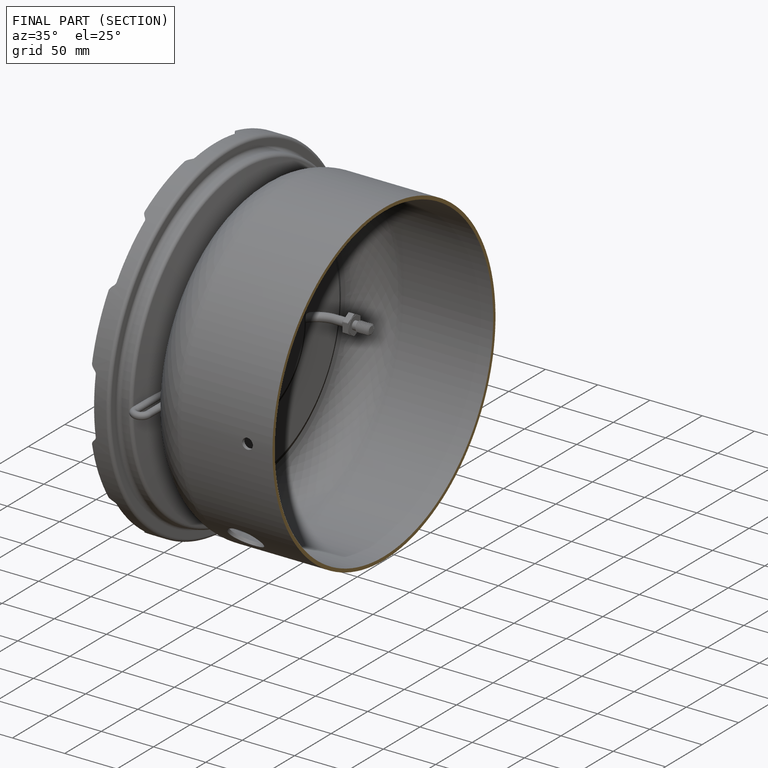
[diagram: finished part — half-section view (interior)]
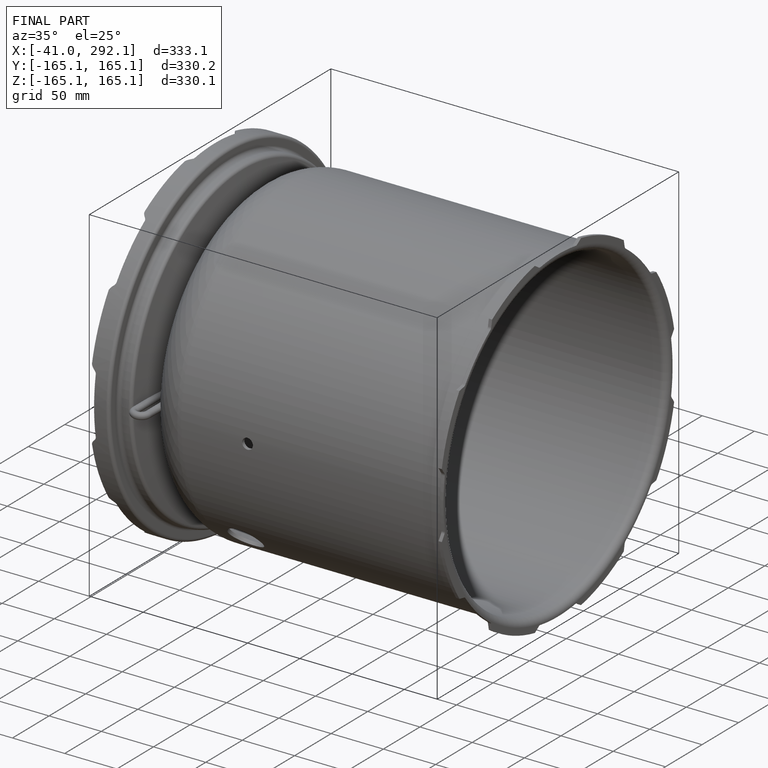
[diagram: finished part — iso view with bounding-box wireframe]
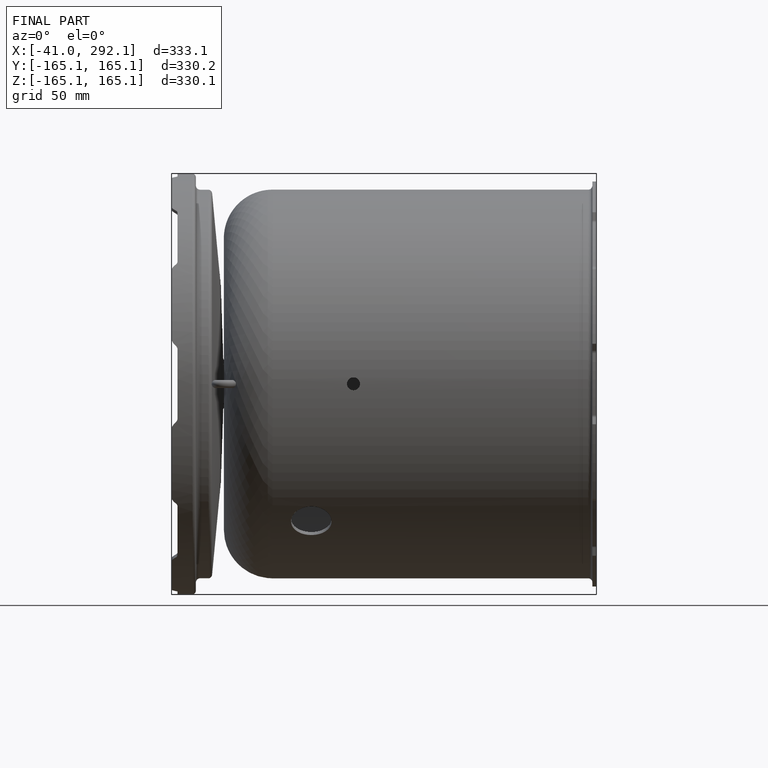
[diagram: finished part — front view with bounding-box wireframe]
